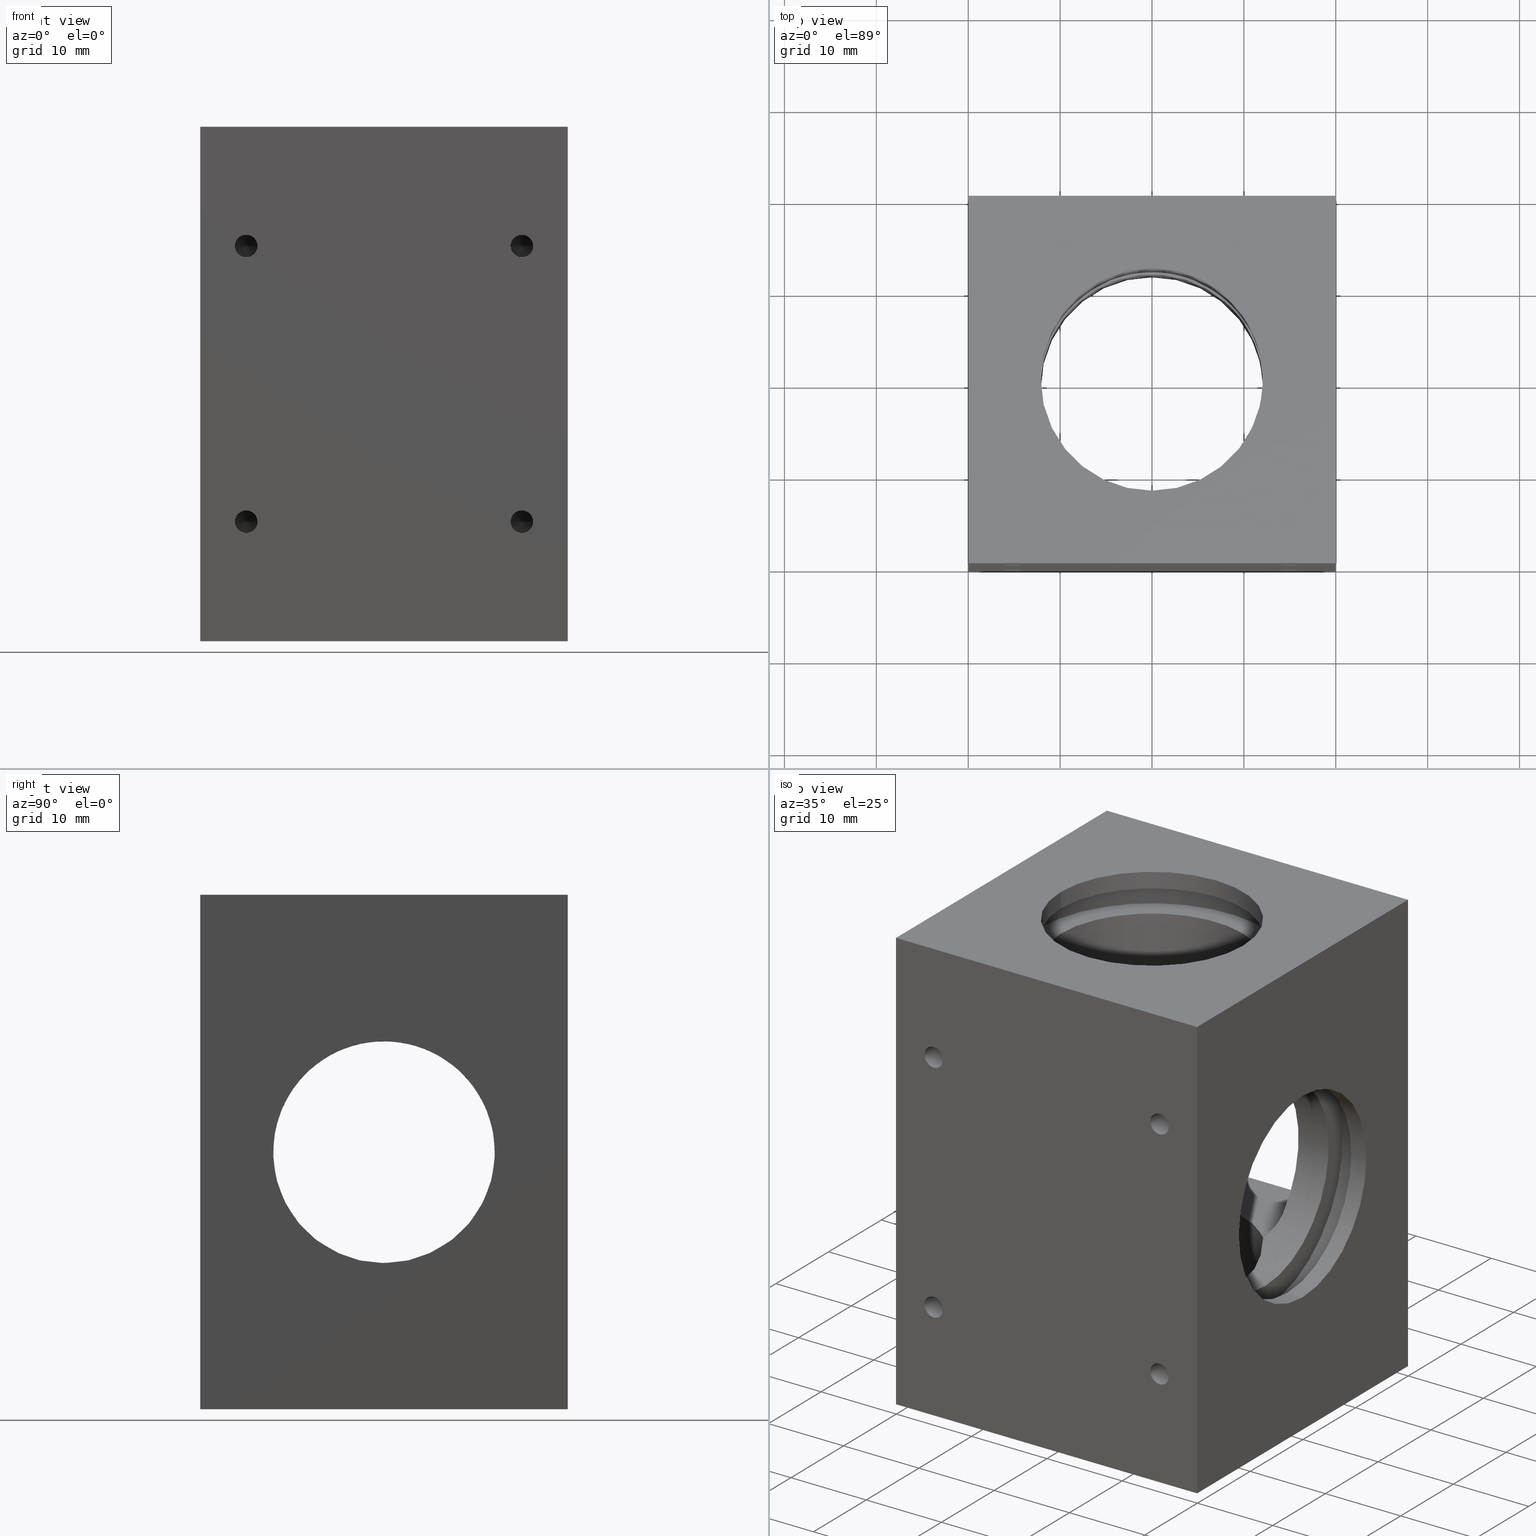
[diagram: canonical four-view strip — front | top / right | iso, engineering-drawing reading convention]
A machine part, canonical four-view strip (front | top / right | iso — engineering-drawing reading convention). The complete STEP part file that produces these views, byte-faithful:
ISO-10303-21;
HEADER;
/* Generated by software containing ST-Developer
 * from STEP Tools, Inc. (www.steptools.com) 
 */

FILE_DESCRIPTION(
/* description */ (''),
/* implementation_level */ '2;1');

FILE_NAME(
/* name */ 
'C:\\Users\\Charl\X\E8ne Brillard\\Desktop\\GHOSTINTHESHELL\\LM\\OpenS
PIM\\CAD\\Website\\X-OpenSPIM40xNikonSampleChamber_v2.stp',
/* time_stamp */ '2021-08-30T17:54:37+02:00',
/* author */ ('Charlene Brillard'),
/* organization */ (''),
/* preprocessor_version */ 'ST-DEVELOPER v16.5',
/* originating_system */ 'Autodesk Inventor 2017',
/* authorisation */ '');

FILE_SCHEMA (('AUTOMOTIVE_DESIGN { 1 0 10303 214 3 1 1 }'));
ENDSEC;

DATA;
#10=MECHANICAL_DESIGN_GEOMETRIC_PRESENTATION_REPRESENTATION('',(#47,#53,
#45,#49,#43,#50,#48,#46,#44,#51,#54,#52,#34,#35,#37,#36,#40,#41,#38,#42,
#39),#1471);
#11=SHAPE_REPRESENTATION_RELATIONSHIP('SRR','None',#1480,#12);
#12=ADVANCED_BREP_SHAPE_REPRESENTATION('',(#13),#1470);
#13=MANIFOLD_SOLID_BREP('Solid1',#817);
#14=ELLIPSE('',#896,17.1119841047144,12.1);
#15=ELLIPSE('',#897,17.1119841047144,12.1);
#16=ELLIPSE('',#899,17.1119841047144,12.1);
#17=ELLIPSE('',#901,17.1119841047144,12.1);
#18=B_SPLINE_CURVE_WITH_KNOTS('',3,(#1231,#1232,#1233,#1234,#1235,#1236),
 .UNSPECIFIED.,.F.,.F.,(4,2,4),(-0.611864740856436,-0.430574594448887,-0.289504826090937),
 .UNSPECIFIED.);
#19=B_SPLINE_CURVE_WITH_KNOTS('',3,(#1238,#1239,#1240,#1241,#1242,#1243),
 .UNSPECIFIED.,.F.,.F.,(4,2,4),(1.38966952352629,1.55096389281161,1.71225826209692),
 .UNSPECIFIED.);
#20=B_SPLINE_CURVE_WITH_KNOTS('',3,(#1253,#1254,#1255,#1256,#1257,#1258),
 .UNSPECIFIED.,.F.,.F.,(4,2,4),(0.501109366172013,0.682399512579561,0.823469280929553),
 .UNSPECIFIED.);
#21=B_SPLINE_CURVE_WITH_KNOTS('',3,(#1259,#1260,#1261,#1262,#1263,#1264),
 .UNSPECIFIED.,.F.,.F.,(4,2,4),(1.40247893311939,1.54354870147734,1.72483884788488),
 .UNSPECIFIED.);
#22=B_SPLINE_CURVE_WITH_KNOTS('',3,(#1339,#1340,#1341,#1342,#1343,#1344),
 .UNSPECIFIED.,.F.,.F.,(4,2,4),(1.40247893312734,1.54354870147733,1.72483884788488),
 .UNSPECIFIED.);
#23=B_SPLINE_CURVE_WITH_KNOTS('',3,(#1347,#1348,#1349,#1350,#1351,#1352),
 .UNSPECIFIED.,.F.,.F.,(4,2,4),(0.289504826099553,0.430574594448888,0.611864740856436),
 .UNSPECIFIED.);
#24=B_SPLINE_CURVE_WITH_KNOTS('',3,(#1355,#1356,#1357,#1358,#1359,#1360),
 .UNSPECIFIED.,.F.,.F.,(4,2,4),(-0.611864740856436,-0.430574594448888,-0.289504826099554),
 .UNSPECIFIED.);
#25=B_SPLINE_CURVE_WITH_KNOTS('',3,(#1366,#1367,#1368,#1369,#1370,#1371),
 .UNSPECIFIED.,.F.,.F.,(4,2,4),(-0.611864740856436,-0.430574594448887,-0.289504826098897),
 .UNSPECIFIED.);
#26=B_SPLINE_CURVE_WITH_KNOTS('',3,(#1376,#1377,#1378,#1379,#1380,#1381),
 .UNSPECIFIED.,.F.,.F.,(4,2,4),(0.501070849621569,0.662365218906885,0.823659588192201),
 .UNSPECIFIED.);
#27=B_SPLINE_CURVE_WITH_KNOTS('',3,(#1384,#1385,#1386,#1387,#1388,#1389),
 .UNSPECIFIED.,.F.,.F.,(4,2,4),(0.276695416497843,0.437989785783159,0.599284155068476),
 .UNSPECIFIED.);
#28=B_SPLINE_CURVE_WITH_KNOTS('',3,(#1394,#1395,#1396,#1397,#1398,#1399),
 .UNSPECIFIED.,.F.,.F.,(4,2,4),(0.289504826090937,0.430574594448887,0.611864740856436),
 .UNSPECIFIED.);
#29=B_SPLINE_CURVE_WITH_KNOTS('',3,(#1403,#1404,#1405,#1406,#1407,#1408),
 .UNSPECIFIED.,.F.,.F.,(4,2,4),(-0.611864740856436,-0.430574594448887,-0.289504826090936),
 .UNSPECIFIED.);
#30=B_SPLINE_CURVE_WITH_KNOTS('',3,(#1411,#1412,#1413,#1414,#1415,#1416),
 .UNSPECIFIED.,.F.,.F.,(4,2,4),(1.38966952352629,1.55096389281161,1.71225826209692),
 .UNSPECIFIED.);
#31=B_SPLINE_CURVE_WITH_KNOTS('',3,(#1418,#1419,#1420,#1421,#1422,#1423),
 .UNSPECIFIED.,.F.,.F.,(4,2,4),(0.501070849621569,0.662365218906885,0.823659588192201),
 .UNSPECIFIED.);
#32=B_SPLINE_CURVE_WITH_KNOTS('',3,(#1427,#1428,#1429,#1430,#1431,#1432),
 .UNSPECIFIED.,.F.,.F.,(4,2,4),(0.501109366172013,0.682399512579562,0.823469280937512),
 .UNSPECIFIED.);
#33=B_SPLINE_CURVE_WITH_KNOTS('',3,(#1435,#1436,#1437,#1438,#1439,#1440),
 .UNSPECIFIED.,.F.,.F.,(4,2,4),(0.289504826090937,0.430574594448887,0.611864740856436),
 .UNSPECIFIED.);
#34=STYLED_ITEM('',(#1490),#776);
#35=STYLED_ITEM('',(#1490),#777);
#36=STYLED_ITEM('',(#1490),#778);
#37=STYLED_ITEM('',(#1490),#779);
#38=STYLED_ITEM('',(#1490),#799);
#39=STYLED_ITEM('',(#1490),#800);
#40=STYLED_ITEM('',(#1490),#803);
#41=STYLED_ITEM('',(#1490),#804);
#42=STYLED_ITEM('',(#1490),#805);
#43=STYLED_ITEM('',(#1490),#806);
#44=STYLED_ITEM('',(#1490),#807);
#45=STYLED_ITEM('',(#1490),#808);
#46=STYLED_ITEM('',(#1490),#809);
#47=STYLED_ITEM('',(#1490),#810);
#48=STYLED_ITEM('',(#1490),#811);
#49=STYLED_ITEM('',(#1490),#812);
#50=STYLED_ITEM('',(#1490),#813);
#51=STYLED_ITEM('',(#1490),#814);
#52=STYLED_ITEM('',(#1490),#815);
#53=STYLED_ITEM('',(#1490),#816);
#54=STYLED_ITEM('',(#1489),#13);
#55=CYLINDRICAL_SURFACE('',#837,1.2295);
#56=CYLINDRICAL_SURFACE('',#841,1.2295);
#57=CYLINDRICAL_SURFACE('',#845,1.2295);
#58=CYLINDRICAL_SURFACE('',#849,1.2295);
#59=CYLINDRICAL_SURFACE('',#851,3.);
#60=CYLINDRICAL_SURFACE('',#854,3.);
#61=CYLINDRICAL_SURFACE('',#858,14.75);
#62=CYLINDRICAL_SURFACE('',#865,12.1);
#63=CYLINDRICAL_SURFACE('',#867,14.75);
#64=CYLINDRICAL_SURFACE('',#874,12.1);
#65=CYLINDRICAL_SURFACE('',#876,14.75);
#66=CYLINDRICAL_SURFACE('',#883,12.1);
#67=CYLINDRICAL_SURFACE('',#885,14.75);
#68=CYLINDRICAL_SURFACE('',#892,12.1);
#69=CYLINDRICAL_SURFACE('',#894,12.1);
#70=CYLINDRICAL_SURFACE('',#898,12.1);
#71=CYLINDRICAL_SURFACE('',#904,3.);
#72=CYLINDRICAL_SURFACE('',#905,12.1);
#73=CYLINDRICAL_SURFACE('',#908,12.1);
#74=CYLINDRICAL_SURFACE('',#910,3.);
#75=CYLINDRICAL_SURFACE('',#912,3.);
#76=CYLINDRICAL_SURFACE('',#913,3.);
#77=CYLINDRICAL_SURFACE('',#916,3.);
#78=CYLINDRICAL_SURFACE('',#918,3.);
#79=CONICAL_SURFACE('',#835,0.61475,59.);
#80=CONICAL_SURFACE('',#839,0.61475,59.);
#81=CONICAL_SURFACE('',#843,0.61475,59.);
#82=CONICAL_SURFACE('',#847,0.61475,59.);
#83=FACE_BOUND('',#212,.T.);
#84=FACE_BOUND('',#216,.T.);
#85=FACE_BOUND('',#219,.T.);
#86=FACE_BOUND('',#222,.T.);
#87=FACE_BOUND('',#225,.T.);
#88=FACE_BOUND('',#231,.T.);
#89=FACE_BOUND('',#232,.T.);
#90=FACE_BOUND('',#233,.T.);
#91=FACE_BOUND('',#234,.T.);
#92=FACE_BOUND('',#236,.T.);
#93=FACE_BOUND('',#238,.T.);
#94=FACE_BOUND('',#240,.T.);
#95=FACE_BOUND('',#242,.T.);
#96=FACE_BOUND('',#244,.T.);
#97=FACE_BOUND('',#246,.T.);
#98=FACE_BOUND('',#248,.T.);
#99=FACE_BOUND('',#250,.T.);
#100=FACE_BOUND('',#252,.T.);
#101=FACE_BOUND('',#254,.T.);
#102=FACE_BOUND('',#256,.T.);
#103=FACE_BOUND('',#258,.T.);
#104=FACE_BOUND('',#260,.T.);
#105=FACE_BOUND('',#262,.T.);
#106=FACE_BOUND('',#264,.T.);
#107=FACE_BOUND('',#266,.T.);
#108=FACE_BOUND('',#268,.T.);
#109=FACE_BOUND('',#270,.T.);
#110=FACE_BOUND('',#274,.T.);
#111=FACE_BOUND('',#276,.T.);
#112=FACE_BOUND('',#288,.T.);
#113=FACE_BOUND('',#290,.T.);
#114=FACE_BOUND('',#292,.T.);
#115=FACE_BOUND('',#294,.T.);
#116=CIRCLE('',#826,3.);
#117=CIRCLE('',#827,3.);
#118=CIRCLE('',#828,3.);
#119=CIRCLE('',#829,3.);
#120=CIRCLE('',#831,3.);
#121=CIRCLE('',#832,3.);
#122=CIRCLE('',#833,3.);
#123=CIRCLE('',#834,3.);
#124=CIRCLE('',#836,1.2295);
#125=CIRCLE('',#838,1.2295);
#126=CIRCLE('',#840,1.2295);
#127=CIRCLE('',#842,1.2295);
#128=CIRCLE('',#844,1.2295);
#129=CIRCLE('',#846,1.2295);
#130=CIRCLE('',#848,1.2295);
#131=CIRCLE('',#850,1.2295);
#132=CIRCLE('',#853,12.1);
#133=CIRCLE('',#856,12.1);
#134=CIRCLE('',#859,14.75);
#135=CIRCLE('',#860,14.75);
#136=CIRCLE('',#862,12.1);
#137=CIRCLE('',#864,12.1);
#138=CIRCLE('',#866,12.1);
#139=CIRCLE('',#868,14.75);
#140=CIRCLE('',#869,14.75);
#141=CIRCLE('',#871,12.1);
#142=CIRCLE('',#873,12.1);
#143=CIRCLE('',#875,12.1);
#144=CIRCLE('',#877,14.75);
#145=CIRCLE('',#878,14.75);
#146=CIRCLE('',#880,12.1);
#147=CIRCLE('',#882,12.1);
#148=CIRCLE('',#884,12.1);
#149=CIRCLE('',#886,14.75);
#150=CIRCLE('',#887,14.75);
#151=CIRCLE('',#889,12.1);
#152=CIRCLE('',#891,12.1);
#153=CIRCLE('',#893,12.1);
#154=CIRCLE('',#895,12.1);
#155=CIRCLE('',#900,12.1);
#156=CIRCLE('',#902,12.1);
#157=CIRCLE('',#906,12.1);
#158=CIRCLE('',#907,12.1);
#159=CIRCLE('',#909,12.1);
#160=FACE_OUTER_BOUND('',#211,.T.);
#161=FACE_OUTER_BOUND('',#213,.T.);
#162=FACE_OUTER_BOUND('',#214,.T.);
#163=FACE_OUTER_BOUND('',#215,.T.);
#164=FACE_OUTER_BOUND('',#217,.T.);
#165=FACE_OUTER_BOUND('',#218,.T.);
#166=FACE_OUTER_BOUND('',#220,.T.);
#167=FACE_OUTER_BOUND('',#221,.T.);
#168=FACE_OUTER_BOUND('',#223,.T.);
#169=FACE_OUTER_BOUND('',#224,.T.);
#170=FACE_OUTER_BOUND('',#226,.T.);
#171=FACE_OUTER_BOUND('',#227,.T.);
#172=FACE_OUTER_BOUND('',#228,.T.);
#173=FACE_OUTER_BOUND('',#229,.T.);
#174=FACE_OUTER_BOUND('',#230,.T.);
#175=FACE_OUTER_BOUND('',#235,.T.);
#176=FACE_OUTER_BOUND('',#237,.T.);
#177=FACE_OUTER_BOUND('',#239,.T.);
#178=FACE_OUTER_BOUND('',#241,.T.);
#179=FACE_OUTER_BOUND('',#243,.T.);
#180=FACE_OUTER_BOUND('',#245,.T.);
#181=FACE_OUTER_BOUND('',#247,.T.);
#182=FACE_OUTER_BOUND('',#249,.T.);
#183=FACE_OUTER_BOUND('',#251,.T.);
#184=FACE_OUTER_BOUND('',#253,.T.);
#185=FACE_OUTER_BOUND('',#255,.T.);
#186=FACE_OUTER_BOUND('',#257,.T.);
#187=FACE_OUTER_BOUND('',#259,.T.);
#188=FACE_OUTER_BOUND('',#261,.T.);
#189=FACE_OUTER_BOUND('',#263,.T.);
#190=FACE_OUTER_BOUND('',#265,.T.);
#191=FACE_OUTER_BOUND('',#267,.T.);
#192=FACE_OUTER_BOUND('',#269,.T.);
#193=FACE_OUTER_BOUND('',#271,.T.);
#194=FACE_OUTER_BOUND('',#272,.T.);
#195=FACE_OUTER_BOUND('',#273,.T.);
#196=FACE_OUTER_BOUND('',#275,.T.);
#197=FACE_OUTER_BOUND('',#277,.T.);
#198=FACE_OUTER_BOUND('',#278,.T.);
#199=FACE_OUTER_BOUND('',#279,.T.);
#200=FACE_OUTER_BOUND('',#280,.T.);
#201=FACE_OUTER_BOUND('',#281,.T.);
#202=FACE_OUTER_BOUND('',#282,.T.);
#203=FACE_OUTER_BOUND('',#283,.T.);
#204=FACE_OUTER_BOUND('',#284,.T.);
#205=FACE_OUTER_BOUND('',#285,.T.);
#206=FACE_OUTER_BOUND('',#286,.T.);
#207=FACE_OUTER_BOUND('',#287,.T.);
#208=FACE_OUTER_BOUND('',#289,.T.);
#209=FACE_OUTER_BOUND('',#291,.T.);
#210=FACE_OUTER_BOUND('',#293,.T.);
#211=EDGE_LOOP('',(#543,#544,#545,#546));
#212=EDGE_LOOP('',(#547,#548,#549,#550,#551,#552,#553,#554));
#213=EDGE_LOOP('',(#555,#556,#557,#558,#559,#560,#561,#562));
#214=EDGE_LOOP('',(#563));
#215=EDGE_LOOP('',(#564));
#216=EDGE_LOOP('',(#565));
#217=EDGE_LOOP('',(#566));
#218=EDGE_LOOP('',(#567));
#219=EDGE_LOOP('',(#568));
#220=EDGE_LOOP('',(#569));
#221=EDGE_LOOP('',(#570));
#222=EDGE_LOOP('',(#571));
#223=EDGE_LOOP('',(#572));
#224=EDGE_LOOP('',(#573));
#225=EDGE_LOOP('',(#574));
#226=EDGE_LOOP('',(#575,#576,#577,#578,#579));
#227=EDGE_LOOP('',(#580,#581,#582,#583));
#228=EDGE_LOOP('',(#584,#585,#586,#587,#588));
#229=EDGE_LOOP('',(#589,#590,#591,#592));
#230=EDGE_LOOP('',(#593,#594,#595,#596));
#231=EDGE_LOOP('',(#597));
#232=EDGE_LOOP('',(#598));
#233=EDGE_LOOP('',(#599));
#234=EDGE_LOOP('',(#600));
#235=EDGE_LOOP('',(#601));
#236=EDGE_LOOP('',(#602));
#237=EDGE_LOOP('',(#603));
#238=EDGE_LOOP('',(#604));
#239=EDGE_LOOP('',(#605));
#240=EDGE_LOOP('',(#606));
#241=EDGE_LOOP('',(#607));
#242=EDGE_LOOP('',(#608));
#243=EDGE_LOOP('',(#609));
#244=EDGE_LOOP('',(#610));
#245=EDGE_LOOP('',(#611));
#246=EDGE_LOOP('',(#612));
#247=EDGE_LOOP('',(#613));
#248=EDGE_LOOP('',(#614));
#249=EDGE_LOOP('',(#615));
#250=EDGE_LOOP('',(#616));
#251=EDGE_LOOP('',(#617));
#252=EDGE_LOOP('',(#618));
#253=EDGE_LOOP('',(#619));
#254=EDGE_LOOP('',(#620));
#255=EDGE_LOOP('',(#621));
#256=EDGE_LOOP('',(#622));
#257=EDGE_LOOP('',(#623));
#258=EDGE_LOOP('',(#624));
#259=EDGE_LOOP('',(#625));
#260=EDGE_LOOP('',(#626));
#261=EDGE_LOOP('',(#627));
#262=EDGE_LOOP('',(#628));
#263=EDGE_LOOP('',(#629));
#264=EDGE_LOOP('',(#630));
#265=EDGE_LOOP('',(#631));
#266=EDGE_LOOP('',(#632));
#267=EDGE_LOOP('',(#633));
#268=EDGE_LOOP('',(#634,#635,#636,#637,#638,#639,#640,#641));
#269=EDGE_LOOP('',(#642));
#270=EDGE_LOOP('',(#643,#644,#645,#646,#647,#648,#649,#650));
#271=EDGE_LOOP('',(#651,#652,#653,#654));
#272=EDGE_LOOP('',(#655,#656,#657,#658,#659));
#273=EDGE_LOOP('',(#660));
#274=EDGE_LOOP('',(#661,#662,#663,#664,#665,#666,#667,#668));
#275=EDGE_LOOP('',(#669));
#276=EDGE_LOOP('',(#670,#671,#672,#673,#674,#675,#676,#677));
#277=EDGE_LOOP('',(#678,#679,#680,#681,#682));
#278=EDGE_LOOP('',(#683,#684,#685,#686));
#279=EDGE_LOOP('',(#687,#688,#689,#690,#691));
#280=EDGE_LOOP('',(#692,#693,#694,#695,#696));
#281=EDGE_LOOP('',(#697,#698,#699,#700));
#282=EDGE_LOOP('',(#701,#702,#703,#704));
#283=EDGE_LOOP('',(#705,#706,#707,#708,#709));
#284=EDGE_LOOP('',(#710,#711,#712,#713));
#285=EDGE_LOOP('',(#714,#715,#716,#717,#718));
#286=EDGE_LOOP('',(#719,#720,#721,#722));
#287=EDGE_LOOP('',(#723,#724,#725,#726));
#288=EDGE_LOOP('',(#727));
#289=EDGE_LOOP('',(#728,#729,#730,#731));
#290=EDGE_LOOP('',(#732));
#291=EDGE_LOOP('',(#733,#734,#735,#736));
#292=EDGE_LOOP('',(#737));
#293=EDGE_LOOP('',(#738,#739,#740,#741));
#294=EDGE_LOOP('',(#742));
#295=LINE('',#1164,#331);
#296=LINE('',#1166,#332);
#297=LINE('',#1168,#333);
#298=LINE('',#1169,#334);
#299=LINE('',#1172,#335);
#300=LINE('',#1176,#336);
#301=LINE('',#1180,#337);
#302=LINE('',#1184,#338);
#303=LINE('',#1189,#339);
#304=LINE('',#1193,#340);
#305=LINE('',#1197,#341);
#306=LINE('',#1201,#342);
#307=LINE('',#1229,#343);
#308=LINE('',#1244,#344);
#309=LINE('',#1247,#345);
#310=LINE('',#1251,#346);
#311=LINE('',#1267,#347);
#312=LINE('',#1272,#348);
#313=LINE('',#1274,#349);
#314=LINE('',#1276,#350);
#315=LINE('',#1277,#351);
#316=LINE('',#1391,#352);
#317=LINE('',#1400,#353);
#318=LINE('',#1442,#354);
#319=LINE('',#1443,#355);
#320=LINE('',#1445,#356);
#321=LINE('',#1447,#357);
#322=LINE('',#1449,#358);
#323=LINE('',#1452,#359);
#324=LINE('',#1454,#360);
#325=LINE('',#1456,#361);
#326=LINE('',#1458,#362);
#327=LINE('',#1461,#363);
#328=LINE('',#1462,#364);
#329=LINE('',#1464,#365);
#330=LINE('',#1466,#366);
#331=VECTOR('',#928,10.);
#332=VECTOR('',#929,10.);
#333=VECTOR('',#930,10.);
#334=VECTOR('',#931,10.);
#335=VECTOR('',#932,10.);
#336=VECTOR('',#935,10.);
#337=VECTOR('',#938,10.);
#338=VECTOR('',#941,10.);
#339=VECTOR('',#946,10.);
#340=VECTOR('',#949,10.);
#341=VECTOR('',#952,10.);
#342=VECTOR('',#955,10.);
#343=VECTOR('',#992,10.);
#344=VECTOR('',#993,10.);
#345=VECTOR('',#996,10.);
#346=VECTOR('',#1001,10.);
#347=VECTOR('',#1004,10.);
#348=VECTOR('',#1009,10.);
#349=VECTOR('',#1010,10.);
#350=VECTOR('',#1011,10.);
#351=VECTOR('',#1012,10.);
#352=VECTOR('',#1105,10.);
#353=VECTOR('',#1108,10.);
#354=VECTOR('',#1121,10.);
#355=VECTOR('',#1122,10.);
#356=VECTOR('',#1125,10.);
#357=VECTOR('',#1128,10.);
#358=VECTOR('',#1131,10.);
#359=VECTOR('',#1136,10.);
#360=VECTOR('',#1139,10.);
#361=VECTOR('',#1142,10.);
#362=VECTOR('',#1145,10.);
#363=VECTOR('',#1150,10.);
#364=VECTOR('',#1151,10.);
#365=VECTOR('',#1154,10.);
#366=VECTOR('',#1157,10.);
#367=VERTEX_POINT('',#1162);
#368=VERTEX_POINT('',#1163);
#369=VERTEX_POINT('',#1165);
#370=VERTEX_POINT('',#1167);
#371=VERTEX_POINT('',#1170);
#372=VERTEX_POINT('',#1171);
#373=VERTEX_POINT('',#1173);
#374=VERTEX_POINT('',#1175);
#375=VERTEX_POINT('',#1177);
#376=VERTEX_POINT('',#1179);
#377=VERTEX_POINT('',#1181);
#378=VERTEX_POINT('',#1183);
#379=VERTEX_POINT('',#1187);
#380=VERTEX_POINT('',#1188);
#381=VERTEX_POINT('',#1190);
#382=VERTEX_POINT('',#1192);
#383=VERTEX_POINT('',#1194);
#384=VERTEX_POINT('',#1196);
#385=VERTEX_POINT('',#1198);
#386=VERTEX_POINT('',#1200);
#387=VERTEX_POINT('',#1204);
#388=VERTEX_POINT('',#1207);
#389=VERTEX_POINT('',#1210);
#390=VERTEX_POINT('',#1213);
#391=VERTEX_POINT('',#1216);
#392=VERTEX_POINT('',#1219);
#393=VERTEX_POINT('',#1222);
#394=VERTEX_POINT('',#1225);
#395=VERTEX_POINT('',#1228);
#396=VERTEX_POINT('',#1230);
#397=VERTEX_POINT('',#1237);
#398=VERTEX_POINT('',#1246);
#399=VERTEX_POINT('',#1250);
#400=VERTEX_POINT('',#1252);
#401=VERTEX_POINT('',#1266);
#402=VERTEX_POINT('',#1270);
#403=VERTEX_POINT('',#1271);
#404=VERTEX_POINT('',#1273);
#405=VERTEX_POINT('',#1275);
#406=VERTEX_POINT('',#1279);
#407=VERTEX_POINT('',#1281);
#408=VERTEX_POINT('',#1284);
#409=VERTEX_POINT('',#1287);
#410=VERTEX_POINT('',#1290);
#411=VERTEX_POINT('',#1293);
#412=VERTEX_POINT('',#1295);
#413=VERTEX_POINT('',#1298);
#414=VERTEX_POINT('',#1301);
#415=VERTEX_POINT('',#1304);
#416=VERTEX_POINT('',#1307);
#417=VERTEX_POINT('',#1309);
#418=VERTEX_POINT('',#1312);
#419=VERTEX_POINT('',#1315);
#420=VERTEX_POINT('',#1318);
#421=VERTEX_POINT('',#1321);
#422=VERTEX_POINT('',#1323);
#423=VERTEX_POINT('',#1326);
#424=VERTEX_POINT('',#1329);
#425=VERTEX_POINT('',#1332);
#426=VERTEX_POINT('',#1335);
#427=VERTEX_POINT('',#1336);
#428=VERTEX_POINT('',#1338);
#429=VERTEX_POINT('',#1346);
#430=VERTEX_POINT('',#1353);
#431=VERTEX_POINT('',#1362);
#432=VERTEX_POINT('',#1363);
#433=VERTEX_POINT('',#1365);
#434=VERTEX_POINT('',#1373);
#435=VERTEX_POINT('',#1375);
#436=VERTEX_POINT('',#1382);
#437=VERTEX_POINT('',#1393);
#438=VERTEX_POINT('',#1402);
#439=VERTEX_POINT('',#1409);
#440=VERTEX_POINT('',#1417);
#441=VERTEX_POINT('',#1426);
#442=VERTEX_POINT('',#1433);
#443=EDGE_CURVE('',#367,#368,#295,.T.);
#444=EDGE_CURVE('',#368,#369,#296,.T.);
#445=EDGE_CURVE('',#369,#370,#297,.T.);
#446=EDGE_CURVE('',#370,#367,#298,.T.);
#447=EDGE_CURVE('',#371,#372,#299,.T.);
#448=EDGE_CURVE('',#372,#373,#116,.T.);
#449=EDGE_CURVE('',#373,#374,#300,.T.);
#450=EDGE_CURVE('',#374,#375,#117,.T.);
#451=EDGE_CURVE('',#375,#376,#301,.T.);
#452=EDGE_CURVE('',#376,#377,#118,.T.);
#453=EDGE_CURVE('',#377,#378,#302,.T.);
#454=EDGE_CURVE('',#378,#371,#119,.T.);
#455=EDGE_CURVE('',#379,#380,#303,.T.);
#456=EDGE_CURVE('',#381,#379,#120,.T.);
#457=EDGE_CURVE('',#382,#381,#304,.T.);
#458=EDGE_CURVE('',#383,#382,#121,.T.);
#459=EDGE_CURVE('',#384,#383,#305,.T.);
#460=EDGE_CURVE('',#385,#384,#122,.T.);
#461=EDGE_CURVE('',#386,#385,#306,.T.);
#462=EDGE_CURVE('',#380,#386,#123,.T.);
#463=EDGE_CURVE('',#387,#387,#124,.T.);
#464=EDGE_CURVE('',#388,#388,#125,.T.);
#465=EDGE_CURVE('',#389,#389,#126,.T.);
#466=EDGE_CURVE('',#390,#390,#127,.T.);
#467=EDGE_CURVE('',#391,#391,#128,.T.);
#468=EDGE_CURVE('',#392,#392,#129,.T.);
#469=EDGE_CURVE('',#393,#393,#130,.T.);
#470=EDGE_CURVE('',#394,#394,#131,.T.);
#471=EDGE_CURVE('',#382,#395,#307,.T.);
#472=EDGE_CURVE('',#395,#396,#18,.T.);
#473=EDGE_CURVE('',#396,#397,#19,.T.);
#474=EDGE_CURVE('',#383,#397,#308,.T.);
#475=EDGE_CURVE('',#381,#398,#309,.T.);
#476=EDGE_CURVE('',#398,#395,#132,.T.);
#477=EDGE_CURVE('',#379,#399,#310,.T.);
#478=EDGE_CURVE('',#399,#400,#20,.T.);
#479=EDGE_CURVE('',#400,#398,#21,.T.);
#480=EDGE_CURVE('',#380,#401,#311,.T.);
#481=EDGE_CURVE('',#401,#399,#133,.T.);
#482=EDGE_CURVE('',#402,#403,#312,.T.);
#483=EDGE_CURVE('',#403,#404,#313,.T.);
#484=EDGE_CURVE('',#404,#405,#314,.T.);
#485=EDGE_CURVE('',#405,#402,#315,.T.);
#486=EDGE_CURVE('',#406,#406,#134,.T.);
#487=EDGE_CURVE('',#407,#407,#135,.T.);
#488=EDGE_CURVE('',#408,#408,#136,.T.);
#489=EDGE_CURVE('',#409,#409,#137,.T.);
#490=EDGE_CURVE('',#410,#410,#138,.T.);
#491=EDGE_CURVE('',#411,#411,#139,.T.);
#492=EDGE_CURVE('',#412,#412,#140,.T.);
#493=EDGE_CURVE('',#413,#413,#141,.T.);
#494=EDGE_CURVE('',#414,#414,#142,.T.);
#495=EDGE_CURVE('',#415,#415,#143,.T.);
#496=EDGE_CURVE('',#416,#416,#144,.T.);
#497=EDGE_CURVE('',#417,#417,#145,.T.);
#498=EDGE_CURVE('',#418,#418,#146,.T.);
#499=EDGE_CURVE('',#419,#419,#147,.T.);
#500=EDGE_CURVE('',#420,#420,#148,.T.);
#501=EDGE_CURVE('',#421,#421,#149,.T.);
#502=EDGE_CURVE('',#422,#422,#150,.T.);
#503=EDGE_CURVE('',#423,#423,#151,.T.);
#504=EDGE_CURVE('',#424,#424,#152,.T.);
#505=EDGE_CURVE('',#425,#425,#153,.T.);
#506=EDGE_CURVE('',#426,#427,#154,.T.);
#507=EDGE_CURVE('',#428,#426,#22,.T.);
#508=EDGE_CURVE('',#400,#428,#14,.T.);
#509=EDGE_CURVE('',#429,#401,#23,.T.);
#510=EDGE_CURVE('',#430,#429,#15,.T.);
#511=EDGE_CURVE('',#427,#430,#24,.T.);
#512=EDGE_CURVE('',#431,#432,#16,.T.);
#513=EDGE_CURVE('',#433,#431,#25,.T.);
#514=EDGE_CURVE('',#397,#433,#155,.T.);
#515=EDGE_CURVE('',#434,#396,#17,.T.);
#516=EDGE_CURVE('',#435,#434,#26,.T.);
#517=EDGE_CURVE('',#436,#435,#156,.T.);
#518=EDGE_CURVE('',#432,#436,#27,.T.);
#519=EDGE_CURVE('',#384,#433,#316,.T.);
#520=EDGE_CURVE('',#431,#437,#28,.T.);
#521=EDGE_CURVE('',#385,#437,#317,.T.);
#522=EDGE_CURVE('',#438,#432,#29,.T.);
#523=EDGE_CURVE('',#439,#438,#157,.T.);
#524=EDGE_CURVE('',#430,#439,#30,.T.);
#525=EDGE_CURVE('',#440,#429,#31,.T.);
#526=EDGE_CURVE('',#437,#440,#158,.T.);
#527=EDGE_CURVE('',#441,#428,#32,.T.);
#528=EDGE_CURVE('',#442,#441,#159,.T.);
#529=EDGE_CURVE('',#434,#442,#33,.T.);
#530=EDGE_CURVE('',#426,#375,#318,.T.);
#531=EDGE_CURVE('',#441,#374,#319,.T.);
#532=EDGE_CURVE('',#427,#376,#320,.T.);
#533=EDGE_CURVE('',#386,#440,#321,.T.);
#534=EDGE_CURVE('',#439,#377,#322,.T.);
#535=EDGE_CURVE('',#438,#378,#323,.T.);
#536=EDGE_CURVE('',#436,#371,#324,.T.);
#537=EDGE_CURVE('',#435,#372,#325,.T.);
#538=EDGE_CURVE('',#442,#373,#326,.T.);
#539=EDGE_CURVE('',#402,#367,#327,.T.);
#540=EDGE_CURVE('',#403,#370,#328,.T.);
#541=EDGE_CURVE('',#404,#369,#329,.T.);
#542=EDGE_CURVE('',#405,#368,#330,.T.);
#543=ORIENTED_EDGE('',*,*,#443,.T.);
#544=ORIENTED_EDGE('',*,*,#444,.T.);
#545=ORIENTED_EDGE('',*,*,#445,.T.);
#546=ORIENTED_EDGE('',*,*,#446,.T.);
#547=ORIENTED_EDGE('',*,*,#447,.T.);
#548=ORIENTED_EDGE('',*,*,#448,.T.);
#549=ORIENTED_EDGE('',*,*,#449,.T.);
#550=ORIENTED_EDGE('',*,*,#450,.T.);
#551=ORIENTED_EDGE('',*,*,#451,.T.);
#552=ORIENTED_EDGE('',*,*,#452,.T.);
#553=ORIENTED_EDGE('',*,*,#453,.T.);
#554=ORIENTED_EDGE('',*,*,#454,.T.);
#555=ORIENTED_EDGE('',*,*,#455,.F.);
#556=ORIENTED_EDGE('',*,*,#456,.F.);
#557=ORIENTED_EDGE('',*,*,#457,.F.);
#558=ORIENTED_EDGE('',*,*,#458,.F.);
#559=ORIENTED_EDGE('',*,*,#459,.F.);
#560=ORIENTED_EDGE('',*,*,#460,.F.);
#561=ORIENTED_EDGE('',*,*,#461,.F.);
#562=ORIENTED_EDGE('',*,*,#462,.F.);
#563=ORIENTED_EDGE('',*,*,#463,.T.);
#564=ORIENTED_EDGE('',*,*,#464,.F.);
#565=ORIENTED_EDGE('',*,*,#463,.F.);
#566=ORIENTED_EDGE('',*,*,#465,.T.);
#567=ORIENTED_EDGE('',*,*,#466,.F.);
#568=ORIENTED_EDGE('',*,*,#465,.F.);
#569=ORIENTED_EDGE('',*,*,#467,.T.);
#570=ORIENTED_EDGE('',*,*,#468,.F.);
#571=ORIENTED_EDGE('',*,*,#467,.F.);
#572=ORIENTED_EDGE('',*,*,#469,.T.);
#573=ORIENTED_EDGE('',*,*,#470,.F.);
#574=ORIENTED_EDGE('',*,*,#469,.F.);
#575=ORIENTED_EDGE('',*,*,#471,.T.);
#576=ORIENTED_EDGE('',*,*,#472,.T.);
#577=ORIENTED_EDGE('',*,*,#473,.T.);
#578=ORIENTED_EDGE('',*,*,#474,.F.);
#579=ORIENTED_EDGE('',*,*,#458,.T.);
#580=ORIENTED_EDGE('',*,*,#475,.T.);
#581=ORIENTED_EDGE('',*,*,#476,.T.);
#582=ORIENTED_EDGE('',*,*,#471,.F.);
#583=ORIENTED_EDGE('',*,*,#457,.T.);
#584=ORIENTED_EDGE('',*,*,#477,.T.);
#585=ORIENTED_EDGE('',*,*,#478,.T.);
#586=ORIENTED_EDGE('',*,*,#479,.T.);
#587=ORIENTED_EDGE('',*,*,#475,.F.);
#588=ORIENTED_EDGE('',*,*,#456,.T.);
#589=ORIENTED_EDGE('',*,*,#480,.T.);
#590=ORIENTED_EDGE('',*,*,#481,.T.);
#591=ORIENTED_EDGE('',*,*,#477,.F.);
#592=ORIENTED_EDGE('',*,*,#455,.T.);
#593=ORIENTED_EDGE('',*,*,#482,.T.);
#594=ORIENTED_EDGE('',*,*,#483,.T.);
#595=ORIENTED_EDGE('',*,*,#484,.T.);
#596=ORIENTED_EDGE('',*,*,#485,.T.);
#597=ORIENTED_EDGE('',*,*,#464,.T.);
#598=ORIENTED_EDGE('',*,*,#466,.T.);
#599=ORIENTED_EDGE('',*,*,#468,.T.);
#600=ORIENTED_EDGE('',*,*,#470,.T.);
#601=ORIENTED_EDGE('',*,*,#486,.F.);
#602=ORIENTED_EDGE('',*,*,#487,.T.);
#603=ORIENTED_EDGE('',*,*,#486,.T.);
#604=ORIENTED_EDGE('',*,*,#488,.F.);
#605=ORIENTED_EDGE('',*,*,#487,.F.);
#606=ORIENTED_EDGE('',*,*,#489,.F.);
#607=ORIENTED_EDGE('',*,*,#490,.F.);
#608=ORIENTED_EDGE('',*,*,#489,.T.);
#609=ORIENTED_EDGE('',*,*,#491,.T.);
#610=ORIENTED_EDGE('',*,*,#492,.F.);
#611=ORIENTED_EDGE('',*,*,#491,.F.);
#612=ORIENTED_EDGE('',*,*,#493,.F.);
#613=ORIENTED_EDGE('',*,*,#492,.T.);
#614=ORIENTED_EDGE('',*,*,#494,.F.);
#615=ORIENTED_EDGE('',*,*,#495,.F.);
#616=ORIENTED_EDGE('',*,*,#494,.T.);
#617=ORIENTED_EDGE('',*,*,#496,.F.);
#618=ORIENTED_EDGE('',*,*,#497,.T.);
#619=ORIENTED_EDGE('',*,*,#496,.T.);
#620=ORIENTED_EDGE('',*,*,#498,.F.);
#621=ORIENTED_EDGE('',*,*,#497,.F.);
#622=ORIENTED_EDGE('',*,*,#499,.F.);
#623=ORIENTED_EDGE('',*,*,#500,.F.);
#624=ORIENTED_EDGE('',*,*,#499,.T.);
#625=ORIENTED_EDGE('',*,*,#501,.T.);
#626=ORIENTED_EDGE('',*,*,#502,.F.);
#627=ORIENTED_EDGE('',*,*,#501,.F.);
#628=ORIENTED_EDGE('',*,*,#503,.F.);
#629=ORIENTED_EDGE('',*,*,#502,.T.);
#630=ORIENTED_EDGE('',*,*,#504,.F.);
#631=ORIENTED_EDGE('',*,*,#505,.F.);
#632=ORIENTED_EDGE('',*,*,#504,.T.);
#633=ORIENTED_EDGE('',*,*,#488,.T.);
#634=ORIENTED_EDGE('',*,*,#506,.F.);
#635=ORIENTED_EDGE('',*,*,#507,.F.);
#636=ORIENTED_EDGE('',*,*,#508,.F.);
#637=ORIENTED_EDGE('',*,*,#478,.F.);
#638=ORIENTED_EDGE('',*,*,#481,.F.);
#639=ORIENTED_EDGE('',*,*,#509,.F.);
#640=ORIENTED_EDGE('',*,*,#510,.F.);
#641=ORIENTED_EDGE('',*,*,#511,.F.);
#642=ORIENTED_EDGE('',*,*,#493,.T.);
#643=ORIENTED_EDGE('',*,*,#512,.F.);
#644=ORIENTED_EDGE('',*,*,#513,.F.);
#645=ORIENTED_EDGE('',*,*,#514,.F.);
#646=ORIENTED_EDGE('',*,*,#473,.F.);
#647=ORIENTED_EDGE('',*,*,#515,.F.);
#648=ORIENTED_EDGE('',*,*,#516,.F.);
#649=ORIENTED_EDGE('',*,*,#517,.F.);
#650=ORIENTED_EDGE('',*,*,#518,.F.);
#651=ORIENTED_EDGE('',*,*,#474,.T.);
#652=ORIENTED_EDGE('',*,*,#514,.T.);
#653=ORIENTED_EDGE('',*,*,#519,.F.);
#654=ORIENTED_EDGE('',*,*,#459,.T.);
#655=ORIENTED_EDGE('',*,*,#519,.T.);
#656=ORIENTED_EDGE('',*,*,#513,.T.);
#657=ORIENTED_EDGE('',*,*,#520,.T.);
#658=ORIENTED_EDGE('',*,*,#521,.F.);
#659=ORIENTED_EDGE('',*,*,#460,.T.);
#660=ORIENTED_EDGE('',*,*,#498,.T.);
#661=ORIENTED_EDGE('',*,*,#512,.T.);
#662=ORIENTED_EDGE('',*,*,#522,.F.);
#663=ORIENTED_EDGE('',*,*,#523,.F.);
#664=ORIENTED_EDGE('',*,*,#524,.F.);
#665=ORIENTED_EDGE('',*,*,#510,.T.);
#666=ORIENTED_EDGE('',*,*,#525,.F.);
#667=ORIENTED_EDGE('',*,*,#526,.F.);
#668=ORIENTED_EDGE('',*,*,#520,.F.);
#669=ORIENTED_EDGE('',*,*,#503,.T.);
#670=ORIENTED_EDGE('',*,*,#515,.T.);
#671=ORIENTED_EDGE('',*,*,#472,.F.);
#672=ORIENTED_EDGE('',*,*,#476,.F.);
#673=ORIENTED_EDGE('',*,*,#479,.F.);
#674=ORIENTED_EDGE('',*,*,#508,.T.);
#675=ORIENTED_EDGE('',*,*,#527,.F.);
#676=ORIENTED_EDGE('',*,*,#528,.F.);
#677=ORIENTED_EDGE('',*,*,#529,.F.);
#678=ORIENTED_EDGE('',*,*,#507,.T.);
#679=ORIENTED_EDGE('',*,*,#530,.T.);
#680=ORIENTED_EDGE('',*,*,#450,.F.);
#681=ORIENTED_EDGE('',*,*,#531,.F.);
#682=ORIENTED_EDGE('',*,*,#527,.T.);
#683=ORIENTED_EDGE('',*,*,#506,.T.);
#684=ORIENTED_EDGE('',*,*,#532,.T.);
#685=ORIENTED_EDGE('',*,*,#451,.F.);
#686=ORIENTED_EDGE('',*,*,#530,.F.);
#687=ORIENTED_EDGE('',*,*,#533,.T.);
#688=ORIENTED_EDGE('',*,*,#525,.T.);
#689=ORIENTED_EDGE('',*,*,#509,.T.);
#690=ORIENTED_EDGE('',*,*,#480,.F.);
#691=ORIENTED_EDGE('',*,*,#462,.T.);
#692=ORIENTED_EDGE('',*,*,#511,.T.);
#693=ORIENTED_EDGE('',*,*,#524,.T.);
#694=ORIENTED_EDGE('',*,*,#534,.T.);
#695=ORIENTED_EDGE('',*,*,#452,.F.);
#696=ORIENTED_EDGE('',*,*,#532,.F.);
#697=ORIENTED_EDGE('',*,*,#521,.T.);
#698=ORIENTED_EDGE('',*,*,#526,.T.);
#699=ORIENTED_EDGE('',*,*,#533,.F.);
#700=ORIENTED_EDGE('',*,*,#461,.T.);
#701=ORIENTED_EDGE('',*,*,#523,.T.);
#702=ORIENTED_EDGE('',*,*,#535,.T.);
#703=ORIENTED_EDGE('',*,*,#453,.F.);
#704=ORIENTED_EDGE('',*,*,#534,.F.);
#705=ORIENTED_EDGE('',*,*,#518,.T.);
#706=ORIENTED_EDGE('',*,*,#536,.T.);
#707=ORIENTED_EDGE('',*,*,#454,.F.);
#708=ORIENTED_EDGE('',*,*,#535,.F.);
#709=ORIENTED_EDGE('',*,*,#522,.T.);
#710=ORIENTED_EDGE('',*,*,#517,.T.);
#711=ORIENTED_EDGE('',*,*,#537,.T.);
#712=ORIENTED_EDGE('',*,*,#447,.F.);
#713=ORIENTED_EDGE('',*,*,#536,.F.);
#714=ORIENTED_EDGE('',*,*,#516,.T.);
#715=ORIENTED_EDGE('',*,*,#529,.T.);
#716=ORIENTED_EDGE('',*,*,#538,.T.);
#717=ORIENTED_EDGE('',*,*,#448,.F.);
#718=ORIENTED_EDGE('',*,*,#537,.F.);
#719=ORIENTED_EDGE('',*,*,#528,.T.);
#720=ORIENTED_EDGE('',*,*,#531,.T.);
#721=ORIENTED_EDGE('',*,*,#449,.F.);
#722=ORIENTED_EDGE('',*,*,#538,.F.);
#723=ORIENTED_EDGE('',*,*,#482,.F.);
#724=ORIENTED_EDGE('',*,*,#539,.T.);
#725=ORIENTED_EDGE('',*,*,#446,.F.);
#726=ORIENTED_EDGE('',*,*,#540,.F.);
#727=ORIENTED_EDGE('',*,*,#500,.T.);
#728=ORIENTED_EDGE('',*,*,#483,.F.);
#729=ORIENTED_EDGE('',*,*,#540,.T.);
#730=ORIENTED_EDGE('',*,*,#445,.F.);
#731=ORIENTED_EDGE('',*,*,#541,.F.);
#732=ORIENTED_EDGE('',*,*,#495,.T.);
#733=ORIENTED_EDGE('',*,*,#484,.F.);
#734=ORIENTED_EDGE('',*,*,#541,.T.);
#735=ORIENTED_EDGE('',*,*,#444,.F.);
#736=ORIENTED_EDGE('',*,*,#542,.F.);
#737=ORIENTED_EDGE('',*,*,#505,.T.);
#738=ORIENTED_EDGE('',*,*,#485,.F.);
#739=ORIENTED_EDGE('',*,*,#542,.T.);
#740=ORIENTED_EDGE('',*,*,#443,.F.);
#741=ORIENTED_EDGE('',*,*,#539,.F.);
#742=ORIENTED_EDGE('',*,*,#490,.T.);
#743=PLANE('',#825);
#744=PLANE('',#830);
#745=PLANE('',#852);
#746=PLANE('',#855);
#747=PLANE('',#857);
#748=PLANE('',#861);
#749=PLANE('',#863);
#750=PLANE('',#870);
#751=PLANE('',#872);
#752=PLANE('',#879);
#753=PLANE('',#881);
#754=PLANE('',#888);
#755=PLANE('',#890);
#756=PLANE('',#903);
#757=PLANE('',#911);
#758=PLANE('',#914);
#759=PLANE('',#915);
#760=PLANE('',#917);
#761=PLANE('',#919);
#762=PLANE('',#920);
#763=PLANE('',#921);
#764=PLANE('',#922);
#765=PLANE('',#923);
#766=ADVANCED_FACE('',(#160,#83),#743,.T.);
#767=ADVANCED_FACE('',(#161),#744,.T.);
#768=ADVANCED_FACE('',(#162),#79,.F.);
#769=ADVANCED_FACE('',(#163,#84),#55,.F.);
#770=ADVANCED_FACE('',(#164),#80,.F.);
#771=ADVANCED_FACE('',(#165,#85),#56,.F.);
#772=ADVANCED_FACE('',(#166),#81,.F.);
#773=ADVANCED_FACE('',(#167,#86),#57,.F.);
#774=ADVANCED_FACE('',(#168),#82,.F.);
#775=ADVANCED_FACE('',(#169,#87),#58,.F.);
#776=ADVANCED_FACE('',(#170),#59,.F.);
#777=ADVANCED_FACE('',(#171),#745,.F.);
#778=ADVANCED_FACE('',(#172),#60,.F.);
#779=ADVANCED_FACE('',(#173),#746,.F.);
#780=ADVANCED_FACE('',(#174,#88,#89,#90,#91),#747,.T.);
#781=ADVANCED_FACE('',(#175,#92),#61,.F.);
#782=ADVANCED_FACE('',(#176,#93),#748,.T.);
#783=ADVANCED_FACE('',(#177,#94),#749,.F.);
#784=ADVANCED_FACE('',(#178,#95),#62,.F.);
#785=ADVANCED_FACE('',(#179,#96),#63,.F.);
#786=ADVANCED_FACE('',(#180,#97),#750,.F.);
#787=ADVANCED_FACE('',(#181,#98),#751,.T.);
#788=ADVANCED_FACE('',(#182,#99),#64,.F.);
#789=ADVANCED_FACE('',(#183,#100),#65,.F.);
#790=ADVANCED_FACE('',(#184,#101),#752,.F.);
#791=ADVANCED_FACE('',(#185,#102),#753,.T.);
#792=ADVANCED_FACE('',(#186,#103),#66,.F.);
#793=ADVANCED_FACE('',(#187,#104),#67,.F.);
#794=ADVANCED_FACE('',(#188,#105),#754,.T.);
#795=ADVANCED_FACE('',(#189,#106),#755,.F.);
#796=ADVANCED_FACE('',(#190,#107),#68,.F.);
#797=ADVANCED_FACE('',(#191,#108),#69,.F.);
#798=ADVANCED_FACE('',(#192,#109),#70,.F.);
#799=ADVANCED_FACE('',(#193),#756,.F.);
#800=ADVANCED_FACE('',(#194),#71,.F.);
#801=ADVANCED_FACE('',(#195,#110),#72,.F.);
#802=ADVANCED_FACE('',(#196,#111),#73,.F.);
#803=ADVANCED_FACE('',(#197),#74,.F.);
#804=ADVANCED_FACE('',(#198),#757,.F.);
#805=ADVANCED_FACE('',(#199),#75,.F.);
#806=ADVANCED_FACE('',(#200),#76,.F.);
#807=ADVANCED_FACE('',(#201),#758,.F.);
#808=ADVANCED_FACE('',(#202),#759,.F.);
#809=ADVANCED_FACE('',(#203),#77,.F.);
#810=ADVANCED_FACE('',(#204),#760,.F.);
#811=ADVANCED_FACE('',(#205),#78,.F.);
#812=ADVANCED_FACE('',(#206),#761,.F.);
#813=ADVANCED_FACE('',(#207,#112),#762,.T.);
#814=ADVANCED_FACE('',(#208,#113),#763,.T.);
#815=ADVANCED_FACE('',(#209,#114),#764,.T.);
#816=ADVANCED_FACE('',(#210,#115),#765,.T.);
#817=CLOSED_SHELL('',(#766,#767,#768,#769,#770,#771,#772,#773,#774,#775,
#776,#777,#778,#779,#780,#781,#782,#783,#784,#785,#786,#787,#788,#789,#790,
#791,#792,#793,#794,#795,#796,#797,#798,#799,#800,#801,#802,#803,#804,#805,
#806,#807,#808,#809,#810,#811,#812,#813,#814,#815,#816));
#818=DATE_TIME_ROLE('creation_date');
#819=APPLIED_DATE_AND_TIME_ASSIGNMENT(#820,#818,(#1482));
#820=DATE_AND_TIME(#821,#822);
#821=CALENDAR_DATE(2021,14,4);
#822=LOCAL_TIME(17,20,1.,#823);
#823=COORDINATED_UNIVERSAL_TIME_OFFSET(0,0,.BEHIND.);
#824=AXIS2_PLACEMENT_3D('placement',#1160,#924,#925);
#825=AXIS2_PLACEMENT_3D('',#1161,#926,#927);
#826=AXIS2_PLACEMENT_3D('',#1174,#933,#934);
#827=AXIS2_PLACEMENT_3D('',#1178,#936,#937);
#828=AXIS2_PLACEMENT_3D('',#1182,#939,#940);
#829=AXIS2_PLACEMENT_3D('',#1185,#942,#943);
#830=AXIS2_PLACEMENT_3D('',#1186,#944,#945);
#831=AXIS2_PLACEMENT_3D('',#1191,#947,#948);
#832=AXIS2_PLACEMENT_3D('',#1195,#950,#951);
#833=AXIS2_PLACEMENT_3D('',#1199,#953,#954);
#834=AXIS2_PLACEMENT_3D('',#1202,#956,#957);
#835=AXIS2_PLACEMENT_3D('',#1203,#958,#959);
#836=AXIS2_PLACEMENT_3D('',#1205,#960,#961);
#837=AXIS2_PLACEMENT_3D('',#1206,#962,#963);
#838=AXIS2_PLACEMENT_3D('',#1208,#964,#965);
#839=AXIS2_PLACEMENT_3D('',#1209,#966,#967);
#840=AXIS2_PLACEMENT_3D('',#1211,#968,#969);
#841=AXIS2_PLACEMENT_3D('',#1212,#970,#971);
#842=AXIS2_PLACEMENT_3D('',#1214,#972,#973);
#843=AXIS2_PLACEMENT_3D('',#1215,#974,#975);
#844=AXIS2_PLACEMENT_3D('',#1217,#976,#977);
#845=AXIS2_PLACEMENT_3D('',#1218,#978,#979);
#846=AXIS2_PLACEMENT_3D('',#1220,#980,#981);
#847=AXIS2_PLACEMENT_3D('',#1221,#982,#983);
#848=AXIS2_PLACEMENT_3D('',#1223,#984,#985);
#849=AXIS2_PLACEMENT_3D('',#1224,#986,#987);
#850=AXIS2_PLACEMENT_3D('',#1226,#988,#989);
#851=AXIS2_PLACEMENT_3D('',#1227,#990,#991);
#852=AXIS2_PLACEMENT_3D('',#1245,#994,#995);
#853=AXIS2_PLACEMENT_3D('',#1248,#997,#998);
#854=AXIS2_PLACEMENT_3D('',#1249,#999,#1000);
#855=AXIS2_PLACEMENT_3D('',#1265,#1002,#1003);
#856=AXIS2_PLACEMENT_3D('',#1268,#1005,#1006);
#857=AXIS2_PLACEMENT_3D('',#1269,#1007,#1008);
#858=AXIS2_PLACEMENT_3D('',#1278,#1013,#1014);
#859=AXIS2_PLACEMENT_3D('',#1280,#1015,#1016);
#860=AXIS2_PLACEMENT_3D('',#1282,#1017,#1018);
#861=AXIS2_PLACEMENT_3D('',#1283,#1019,#1020);
#862=AXIS2_PLACEMENT_3D('',#1285,#1021,#1022);
#863=AXIS2_PLACEMENT_3D('',#1286,#1023,#1024);
#864=AXIS2_PLACEMENT_3D('',#1288,#1025,#1026);
#865=AXIS2_PLACEMENT_3D('',#1289,#1027,#1028);
#866=AXIS2_PLACEMENT_3D('',#1291,#1029,#1030);
#867=AXIS2_PLACEMENT_3D('',#1292,#1031,#1032);
#868=AXIS2_PLACEMENT_3D('',#1294,#1033,#1034);
#869=AXIS2_PLACEMENT_3D('',#1296,#1035,#1036);
#870=AXIS2_PLACEMENT_3D('',#1297,#1037,#1038);
#871=AXIS2_PLACEMENT_3D('',#1299,#1039,#1040);
#872=AXIS2_PLACEMENT_3D('',#1300,#1041,#1042);
#873=AXIS2_PLACEMENT_3D('',#1302,#1043,#1044);
#874=AXIS2_PLACEMENT_3D('',#1303,#1045,#1046);
#875=AXIS2_PLACEMENT_3D('',#1305,#1047,#1048);
#876=AXIS2_PLACEMENT_3D('',#1306,#1049,#1050);
#877=AXIS2_PLACEMENT_3D('',#1308,#1051,#1052);
#878=AXIS2_PLACEMENT_3D('',#1310,#1053,#1054);
#879=AXIS2_PLACEMENT_3D('',#1311,#1055,#1056);
#880=AXIS2_PLACEMENT_3D('',#1313,#1057,#1058);
#881=AXIS2_PLACEMENT_3D('',#1314,#1059,#1060);
#882=AXIS2_PLACEMENT_3D('',#1316,#1061,#1062);
#883=AXIS2_PLACEMENT_3D('',#1317,#1063,#1064);
#884=AXIS2_PLACEMENT_3D('',#1319,#1065,#1066);
#885=AXIS2_PLACEMENT_3D('',#1320,#1067,#1068);
#886=AXIS2_PLACEMENT_3D('',#1322,#1069,#1070);
#887=AXIS2_PLACEMENT_3D('',#1324,#1071,#1072);
#888=AXIS2_PLACEMENT_3D('',#1325,#1073,#1074);
#889=AXIS2_PLACEMENT_3D('',#1327,#1075,#1076);
#890=AXIS2_PLACEMENT_3D('',#1328,#1077,#1078);
#891=AXIS2_PLACEMENT_3D('',#1330,#1079,#1080);
#892=AXIS2_PLACEMENT_3D('',#1331,#1081,#1082);
#893=AXIS2_PLACEMENT_3D('',#1333,#1083,#1084);
#894=AXIS2_PLACEMENT_3D('',#1334,#1085,#1086);
#895=AXIS2_PLACEMENT_3D('',#1337,#1087,#1088);
#896=AXIS2_PLACEMENT_3D('',#1345,#1089,#1090);
#897=AXIS2_PLACEMENT_3D('',#1354,#1091,#1092);
#898=AXIS2_PLACEMENT_3D('',#1361,#1093,#1094);
#899=AXIS2_PLACEMENT_3D('',#1364,#1095,#1096);
#900=AXIS2_PLACEMENT_3D('',#1372,#1097,#1098);
#901=AXIS2_PLACEMENT_3D('',#1374,#1099,#1100);
#902=AXIS2_PLACEMENT_3D('',#1383,#1101,#1102);
#903=AXIS2_PLACEMENT_3D('',#1390,#1103,#1104);
#904=AXIS2_PLACEMENT_3D('',#1392,#1106,#1107);
#905=AXIS2_PLACEMENT_3D('',#1401,#1109,#1110);
#906=AXIS2_PLACEMENT_3D('',#1410,#1111,#1112);
#907=AXIS2_PLACEMENT_3D('',#1424,#1113,#1114);
#908=AXIS2_PLACEMENT_3D('',#1425,#1115,#1116);
#909=AXIS2_PLACEMENT_3D('',#1434,#1117,#1118);
#910=AXIS2_PLACEMENT_3D('',#1441,#1119,#1120);
#911=AXIS2_PLACEMENT_3D('',#1444,#1123,#1124);
#912=AXIS2_PLACEMENT_3D('',#1446,#1126,#1127);
#913=AXIS2_PLACEMENT_3D('',#1448,#1129,#1130);
#914=AXIS2_PLACEMENT_3D('',#1450,#1132,#1133);
#915=AXIS2_PLACEMENT_3D('',#1451,#1134,#1135);
#916=AXIS2_PLACEMENT_3D('',#1453,#1137,#1138);
#917=AXIS2_PLACEMENT_3D('',#1455,#1140,#1141);
#918=AXIS2_PLACEMENT_3D('',#1457,#1143,#1144);
#919=AXIS2_PLACEMENT_3D('',#1459,#1146,#1147);
#920=AXIS2_PLACEMENT_3D('',#1460,#1148,#1149);
#921=AXIS2_PLACEMENT_3D('',#1463,#1152,#1153);
#922=AXIS2_PLACEMENT_3D('',#1465,#1155,#1156);
#923=AXIS2_PLACEMENT_3D('',#1467,#1158,#1159);
#924=DIRECTION('axis',(0.,0.,1.));
#925=DIRECTION('refdir',(1.,0.,0.));
#926=DIRECTION('center_axis',(0.,1.,0.));
#927=DIRECTION('ref_axis',(0.,0.,1.));
#928=DIRECTION('',(1.,0.,-1.11022302462516E-16));
#929=DIRECTION('',(0.,0.,-1.));
#930=DIRECTION('',(-1.,0.,4.44089209850063E-16));
#931=DIRECTION('',(-1.18952466924124E-16,0.,1.));
#932=DIRECTION('',(1.,0.,-2.77555756156289E-16));
#933=DIRECTION('center_axis',(0.,-1.,0.));
#934=DIRECTION('ref_axis',(-1.,0.,0.));
#935=DIRECTION('',(0.,0.,1.));
#936=DIRECTION('center_axis',(0.,-1.,0.));
#937=DIRECTION('ref_axis',(0.,0.,-1.));
#938=DIRECTION('',(-1.,0.,-1.38777878078145E-16));
#939=DIRECTION('center_axis',(0.,-1.,0.));
#940=DIRECTION('ref_axis',(1.,0.,0.));
#941=DIRECTION('',(2.77555756156289E-16,0.,-1.));
#942=DIRECTION('center_axis',(0.,-1.,0.));
#943=DIRECTION('ref_axis',(0.,0.,1.));
#944=DIRECTION('center_axis',(0.,1.,0.));
#945=DIRECTION('ref_axis',(0.,0.,1.));
#946=DIRECTION('',(-1.,0.,-3.88578058618805E-16));
#947=DIRECTION('center_axis',(0.,-1.,0.));
#948=DIRECTION('ref_axis',(4.44089209850063E-16,0.,1.));
#949=DIRECTION('',(-1.11022302462515E-16,0.,1.));
#950=DIRECTION('center_axis',(0.,-1.,0.));
#951=DIRECTION('ref_axis',(1.,0.,-4.44089209850063E-16));
#952=DIRECTION('',(1.,0.,-1.66533453693774E-16));
#953=DIRECTION('center_axis',(0.,-1.,0.));
#954=DIRECTION('ref_axis',(-4.44089209850063E-16,0.,-1.));
#955=DIRECTION('',(5.27355936696949E-16,0.,-1.));
#956=DIRECTION('center_axis',(0.,-1.,0.));
#957=DIRECTION('ref_axis',(-1.,0.,4.44089209850063E-16));
#958=DIRECTION('center_axis',(0.,-1.,0.));
#959=DIRECTION('ref_axis',(1.,0.,-4.44089209850063E-16));
#960=DIRECTION('center_axis',(0.,-1.,0.));
#961=DIRECTION('ref_axis',(1.,0.,-4.44089209850063E-16));
#962=DIRECTION('center_axis',(0.,-1.,0.));
#963=DIRECTION('ref_axis',(1.,0.,-4.44089209850063E-16));
#964=DIRECTION('center_axis',(0.,1.,0.));
#965=DIRECTION('ref_axis',(1.,0.,-4.44089209850063E-16));
#966=DIRECTION('center_axis',(0.,-1.,0.));
#967=DIRECTION('ref_axis',(1.,0.,-4.44089209850063E-16));
#968=DIRECTION('center_axis',(0.,-1.,0.));
#969=DIRECTION('ref_axis',(1.,0.,-4.44089209850063E-16));
#970=DIRECTION('center_axis',(0.,-1.,0.));
#971=DIRECTION('ref_axis',(1.,0.,-4.44089209850063E-16));
#972=DIRECTION('center_axis',(0.,1.,0.));
#973=DIRECTION('ref_axis',(1.,0.,-4.44089209850063E-16));
#974=DIRECTION('center_axis',(0.,-1.,0.));
#975=DIRECTION('ref_axis',(1.,0.,-4.44089209850063E-16));
#976=DIRECTION('center_axis',(0.,-1.,0.));
#977=DIRECTION('ref_axis',(1.,0.,-4.44089209850063E-16));
#978=DIRECTION('center_axis',(0.,-1.,0.));
#979=DIRECTION('ref_axis',(1.,0.,-4.44089209850063E-16));
#980=DIRECTION('center_axis',(0.,1.,0.));
#981=DIRECTION('ref_axis',(1.,0.,-4.44089209850063E-16));
#982=DIRECTION('center_axis',(0.,-1.,0.));
#983=DIRECTION('ref_axis',(1.,0.,-4.44089209850063E-16));
#984=DIRECTION('center_axis',(0.,-1.,0.));
#985=DIRECTION('ref_axis',(1.,0.,-4.44089209850063E-16));
#986=DIRECTION('center_axis',(0.,-1.,0.));
#987=DIRECTION('ref_axis',(1.,0.,-4.44089209850063E-16));
#988=DIRECTION('center_axis',(0.,1.,0.));
#989=DIRECTION('ref_axis',(1.,0.,-4.44089209850063E-16));
#990=DIRECTION('center_axis',(0.,1.,0.));
#991=DIRECTION('ref_axis',(-1.,0.,0.));
#992=DIRECTION('',(0.,1.,0.));
#993=DIRECTION('',(0.,1.,0.));
#994=DIRECTION('center_axis',(1.,0.,0.));
#995=DIRECTION('ref_axis',(0.,0.,-1.));
#996=DIRECTION('',(0.,1.,0.));
#997=DIRECTION('center_axis',(1.,0.,0.));
#998=DIRECTION('ref_axis',(0.,0.,1.));
#999=DIRECTION('center_axis',(0.,1.,0.));
#1000=DIRECTION('ref_axis',(0.,0.,-1.));
#1001=DIRECTION('',(0.,1.,0.));
#1002=DIRECTION('center_axis',(-1.38777878078145E-16,0.,1.));
#1003=DIRECTION('ref_axis',(1.,0.,1.77635683940025E-16));
#1004=DIRECTION('',(0.,1.,0.));
#1005=DIRECTION('center_axis',(-1.38777878078145E-16,0.,1.));
#1006=DIRECTION('ref_axis',(1.,0.,-4.53152254949043E-16));
#1007=DIRECTION('center_axis',(0.,-1.,0.));
#1008=DIRECTION('ref_axis',(0.,0.,-1.));
#1009=DIRECTION('',(1.18952466924124E-16,0.,-1.));
#1010=DIRECTION('',(1.,0.,-4.44089209850063E-16));
#1011=DIRECTION('',(0.,0.,1.));
#1012=DIRECTION('',(-1.,0.,1.11022302462516E-16));
#1013=DIRECTION('center_axis',(-7.40148683083438E-16,0.,1.));
#1014=DIRECTION('ref_axis',(1.,0.,7.40148683083438E-16));
#1015=DIRECTION('center_axis',(-4.44089209850063E-16,0.,1.));
#1016=DIRECTION('ref_axis',(1.,0.,4.44089209850063E-16));
#1017=DIRECTION('center_axis',(-4.44089209850063E-16,0.,1.));
#1018=DIRECTION('ref_axis',(1.,0.,4.44089209850063E-16));
#1019=DIRECTION('center_axis',(-4.44089209850063E-16,9.86076131526265E-32,
1.));
#1020=DIRECTION('ref_axis',(1.,0.,3.5527136788005E-16));
#1021=DIRECTION('center_axis',(-4.44089209850063E-16,9.86076131526265E-32,
1.));
#1022=DIRECTION('ref_axis',(1.,0.,-4.53152254949043E-16));
#1023=DIRECTION('center_axis',(-4.44089209850063E-16,9.86076131526265E-32,
1.));
#1024=DIRECTION('ref_axis',(1.,0.,3.5527136788005E-16));
#1025=DIRECTION('center_axis',(4.44089209850063E-16,-9.86076131526265E-32,
-1.));
#1026=DIRECTION('ref_axis',(1.,0.,-4.53152254949043E-16));
#1027=DIRECTION('center_axis',(4.53152254949043E-16,0.,1.));
#1028=DIRECTION('ref_axis',(1.,0.,-4.53152254949043E-16));
#1029=DIRECTION('center_axis',(-1.11022302462516E-16,0.,-1.));
#1030=DIRECTION('ref_axis',(1.,0.,-4.53152254949043E-16));
#1031=DIRECTION('center_axis',(7.40148683083438E-16,0.,1.));
#1032=DIRECTION('ref_axis',(1.,0.,-7.40148683083438E-16));
#1033=DIRECTION('center_axis',(4.44089209850063E-16,0.,1.));
#1034=DIRECTION('ref_axis',(1.,0.,-4.44089209850063E-16));
#1035=DIRECTION('center_axis',(4.44089209850063E-16,0.,1.));
#1036=DIRECTION('ref_axis',(1.,0.,-4.44089209850063E-16));
#1037=DIRECTION('center_axis',(4.44089209850063E-16,-9.86076131526265E-32,
1.));
#1038=DIRECTION('ref_axis',(1.,0.,-3.5527136788005E-16));
#1039=DIRECTION('center_axis',(-4.44089209850063E-16,9.86076131526265E-32,
-1.));
#1040=DIRECTION('ref_axis',(1.,0.,-4.53152254949043E-16));
#1041=DIRECTION('center_axis',(4.44089209850063E-16,-9.86076131526265E-32,
1.));
#1042=DIRECTION('ref_axis',(1.,0.,-3.5527136788005E-16));
#1043=DIRECTION('center_axis',(4.44089209850063E-16,-9.86076131526265E-32,
1.));
#1044=DIRECTION('ref_axis',(1.,0.,-4.53152254949043E-16));
#1045=DIRECTION('center_axis',(4.53152254949043E-16,0.,1.));
#1046=DIRECTION('ref_axis',(1.,0.,-4.53152254949043E-16));
#1047=DIRECTION('center_axis',(4.44089209850063E-16,0.,1.));
#1048=DIRECTION('ref_axis',(1.,0.,-4.53152254949043E-16));
#1049=DIRECTION('center_axis',(-1.,0.,0.));
#1050=DIRECTION('ref_axis',(0.,0.,1.));
#1051=DIRECTION('center_axis',(-1.,0.,0.));
#1052=DIRECTION('ref_axis',(0.,0.,1.));
#1053=DIRECTION('center_axis',(-1.,0.,0.));
#1054=DIRECTION('ref_axis',(0.,0.,1.));
#1055=DIRECTION('center_axis',(1.,0.,0.));
#1056=DIRECTION('ref_axis',(0.,0.,-1.));
#1057=DIRECTION('center_axis',(-1.,0.,0.));
#1058=DIRECTION('ref_axis',(0.,0.,1.));
#1059=DIRECTION('center_axis',(1.,0.,0.));
#1060=DIRECTION('ref_axis',(0.,0.,-1.));
#1061=DIRECTION('center_axis',(1.,0.,0.));
#1062=DIRECTION('ref_axis',(0.,0.,1.));
#1063=DIRECTION('center_axis',(-1.,0.,0.));
#1064=DIRECTION('ref_axis',(0.,0.,1.));
#1065=DIRECTION('center_axis',(1.,0.,1.18952466924124E-16));
#1066=DIRECTION('ref_axis',(0.,0.,1.));
#1067=DIRECTION('center_axis',(-1.,0.,0.));
#1068=DIRECTION('ref_axis',(0.,0.,1.));
#1069=DIRECTION('center_axis',(-1.,0.,0.));
#1070=DIRECTION('ref_axis',(0.,0.,1.));
#1071=DIRECTION('center_axis',(-1.,0.,0.));
#1072=DIRECTION('ref_axis',(0.,0.,1.));
#1073=DIRECTION('center_axis',(1.,0.,0.));
#1074=DIRECTION('ref_axis',(0.,0.,-1.));
#1075=DIRECTION('center_axis',(1.,0.,0.));
#1076=DIRECTION('ref_axis',(0.,0.,1.));
#1077=DIRECTION('center_axis',(1.,0.,0.));
#1078=DIRECTION('ref_axis',(0.,0.,-1.));
#1079=DIRECTION('center_axis',(-1.,0.,0.));
#1080=DIRECTION('ref_axis',(0.,0.,1.));
#1081=DIRECTION('center_axis',(-1.,0.,0.));
#1082=DIRECTION('ref_axis',(0.,0.,1.));
#1083=DIRECTION('center_axis',(-1.,0.,0.));
#1084=DIRECTION('ref_axis',(0.,0.,1.));
#1085=DIRECTION('center_axis',(4.53152254949043E-16,0.,1.));
#1086=DIRECTION('ref_axis',(1.,0.,-4.53152254949043E-16));
#1087=DIRECTION('center_axis',(-1.38777878078145E-16,0.,1.));
#1088=DIRECTION('ref_axis',(1.,0.,-4.53152254949043E-16));
#1089=DIRECTION('center_axis',(-0.707106781186547,0.,0.707106781186548));
#1090=DIRECTION('ref_axis',(0.707106781186548,0.,0.707106781186547));
#1091=DIRECTION('center_axis',(0.707106781186548,0.,0.707106781186547));
#1092=DIRECTION('ref_axis',(0.707106781186547,0.,-0.707106781186548));
#1093=DIRECTION('center_axis',(4.53152254949043E-16,0.,1.));
#1094=DIRECTION('ref_axis',(1.,0.,-4.53152254949043E-16));
#1095=DIRECTION('center_axis',(0.707106781186547,0.,-0.707106781186548));
#1096=DIRECTION('ref_axis',(0.707106781186548,0.,0.707106781186547));
#1097=DIRECTION('center_axis',(-2.77555756156289E-16,0.,-1.));
#1098=DIRECTION('ref_axis',(1.,0.,-4.53152254949043E-16));
#1099=DIRECTION('center_axis',(-0.707106781186548,0.,-0.707106781186547));
#1100=DIRECTION('ref_axis',(0.707106781186547,0.,-0.707106781186548));
#1101=DIRECTION('center_axis',(-2.77555756156289E-16,0.,-1.));
#1102=DIRECTION('ref_axis',(1.,0.,-4.53152254949043E-16));
#1103=DIRECTION('center_axis',(-2.77555756156289E-16,0.,-1.));
#1104=DIRECTION('ref_axis',(-1.,0.,3.5527136788005E-16));
#1105=DIRECTION('',(0.,1.,0.));
#1106=DIRECTION('center_axis',(0.,1.,0.));
#1107=DIRECTION('ref_axis',(0.,0.,1.));
#1108=DIRECTION('',(0.,1.,0.));
#1109=DIRECTION('center_axis',(-1.,0.,0.));
#1110=DIRECTION('ref_axis',(0.,0.,1.));
#1111=DIRECTION('center_axis',(-1.,0.,-2.77555756156289E-16));
#1112=DIRECTION('ref_axis',(0.,0.,1.));
#1113=DIRECTION('center_axis',(-1.,0.,-2.77555756156289E-16));
#1114=DIRECTION('ref_axis',(0.,0.,1.));
#1115=DIRECTION('center_axis',(-1.,0.,0.));
#1116=DIRECTION('ref_axis',(0.,0.,1.));
#1117=DIRECTION('center_axis',(1.,0.,0.));
#1118=DIRECTION('ref_axis',(0.,0.,1.));
#1119=DIRECTION('center_axis',(0.,1.,0.));
#1120=DIRECTION('ref_axis',(0.,0.,-1.));
#1121=DIRECTION('',(0.,1.,0.));
#1122=DIRECTION('',(0.,1.,0.));
#1123=DIRECTION('center_axis',(-1.38777878078145E-16,0.,1.));
#1124=DIRECTION('ref_axis',(1.,0.,1.77635683940025E-16));
#1125=DIRECTION('',(0.,1.,0.));
#1126=DIRECTION('center_axis',(0.,1.,0.));
#1127=DIRECTION('ref_axis',(1.,0.,0.));
#1128=DIRECTION('',(0.,1.,0.));
#1129=DIRECTION('center_axis',(0.,1.,0.));
#1130=DIRECTION('ref_axis',(1.,0.,0.));
#1131=DIRECTION('',(0.,1.,0.));
#1132=DIRECTION('center_axis',(-1.,0.,-2.77555756156289E-16));
#1133=DIRECTION('ref_axis',(-3.5527136788005E-16,0.,1.));
#1134=DIRECTION('center_axis',(-1.,0.,-2.77555756156289E-16));
#1135=DIRECTION('ref_axis',(-3.5527136788005E-16,0.,1.));
#1136=DIRECTION('',(0.,1.,0.));
#1137=DIRECTION('center_axis',(0.,1.,0.));
#1138=DIRECTION('ref_axis',(0.,0.,1.));
#1139=DIRECTION('',(0.,1.,0.));
#1140=DIRECTION('center_axis',(-2.77555756156289E-16,0.,-1.));
#1141=DIRECTION('ref_axis',(-1.,0.,3.5527136788005E-16));
#1142=DIRECTION('',(0.,1.,0.));
#1143=DIRECTION('center_axis',(0.,1.,0.));
#1144=DIRECTION('ref_axis',(-1.,0.,0.));
#1145=DIRECTION('',(0.,1.,0.));
#1146=DIRECTION('center_axis',(1.,0.,0.));
#1147=DIRECTION('ref_axis',(0.,0.,-1.));
#1148=DIRECTION('center_axis',(-1.,0.,-1.18952466924124E-16));
#1149=DIRECTION('ref_axis',(0.,0.,1.));
#1150=DIRECTION('',(0.,1.,0.));
#1151=DIRECTION('',(0.,1.,0.));
#1152=DIRECTION('center_axis',(-4.44089209850063E-16,0.,-1.));
#1153=DIRECTION('ref_axis',(-1.,0.,3.5527136788005E-16));
#1154=DIRECTION('',(0.,1.,0.));
#1155=DIRECTION('center_axis',(1.,0.,0.));
#1156=DIRECTION('ref_axis',(0.,0.,-1.));
#1157=DIRECTION('',(0.,1.,0.));
#1158=DIRECTION('center_axis',(1.11022302462516E-16,0.,1.));
#1159=DIRECTION('ref_axis',(1.,0.,0.));
#1160=CARTESIAN_POINT('',(0.,0.,0.));
#1161=CARTESIAN_POINT('Origin',(4.44089209850063E-15,49.95,-4.44089209850063E-15));
#1162=CARTESIAN_POINT('',(-20.,49.95,28.));
#1163=CARTESIAN_POINT('',(20.,49.95,28.));
#1164=CARTESIAN_POINT('',(-20.,49.95,28.));
#1165=CARTESIAN_POINT('',(20.,49.95,-28.));
#1166=CARTESIAN_POINT('',(20.,49.95,28.));
#1167=CARTESIAN_POINT('',(-20.,49.95,-28.));
#1168=CARTESIAN_POINT('',(20.,49.95,-28.));
#1169=CARTESIAN_POINT('',(-20.,49.95,-28.));
#1170=CARTESIAN_POINT('',(-8.,49.95,-11.));
#1171=CARTESIAN_POINT('',(8.,49.95,-11.));
#1172=CARTESIAN_POINT('',(4.,49.95,-11.));
#1173=CARTESIAN_POINT('',(11.,49.95,-8.));
#1174=CARTESIAN_POINT('Origin',(8.,49.95,-8.));
#1175=CARTESIAN_POINT('',(11.,49.95,8.));
#1176=CARTESIAN_POINT('',(11.,49.95,4.));
#1177=CARTESIAN_POINT('',(8.,49.95,11.));
#1178=CARTESIAN_POINT('Origin',(8.,49.95,8.));
#1179=CARTESIAN_POINT('',(-8.,49.95,11.));
#1180=CARTESIAN_POINT('',(-4.,49.95,11.));
#1181=CARTESIAN_POINT('',(-11.,49.95,8.));
#1182=CARTESIAN_POINT('Origin',(-8.,49.95,8.));
#1183=CARTESIAN_POINT('',(-11.,49.95,-8.));
#1184=CARTESIAN_POINT('',(-11.,49.95,-4.));
#1185=CARTESIAN_POINT('Origin',(-8.,49.95,-8.));
#1186=CARTESIAN_POINT('Origin',(-2.66412035739649E-16,10.95,4.79541664331369E-16));
#1187=CARTESIAN_POINT('',(8.,10.95,11.));
#1188=CARTESIAN_POINT('',(-8.,10.95,11.));
#1189=CARTESIAN_POINT('',(-8.,10.95,11.));
#1190=CARTESIAN_POINT('',(11.,10.95,8.));
#1191=CARTESIAN_POINT('Origin',(8.,10.95,8.));
#1192=CARTESIAN_POINT('',(11.,10.95,-8.));
#1193=CARTESIAN_POINT('',(11.,10.95,8.));
#1194=CARTESIAN_POINT('',(8.,10.95,-11.));
#1195=CARTESIAN_POINT('Origin',(8.,10.95,-8.));
#1196=CARTESIAN_POINT('',(-8.,10.95,-11.));
#1197=CARTESIAN_POINT('',(8.,10.95,-11.));
#1198=CARTESIAN_POINT('',(-11.,10.95,-8.));
#1199=CARTESIAN_POINT('Origin',(-8.,10.95,-8.));
#1200=CARTESIAN_POINT('',(-11.,10.95,8.));
#1201=CARTESIAN_POINT('',(-11.,10.95,-8.));
#1202=CARTESIAN_POINT('Origin',(-8.,10.95,8.));
#1203=CARTESIAN_POINT('Origin',(-15.,22.3193790655472,-15.));
#1204=CARTESIAN_POINT('',(-13.7705,21.95,-15.));
#1205=CARTESIAN_POINT('Origin',(-15.,21.95,-15.));
#1206=CARTESIAN_POINT('Origin',(-15.,15.95,-15.));
#1207=CARTESIAN_POINT('',(-13.7705,9.95,-15.));
#1208=CARTESIAN_POINT('Origin',(-15.,9.95,-15.));
#1209=CARTESIAN_POINT('Origin',(-15.,22.3193790655472,15.));
#1210=CARTESIAN_POINT('',(-13.7705,21.95,15.));
#1211=CARTESIAN_POINT('Origin',(-15.,21.95,15.));
#1212=CARTESIAN_POINT('Origin',(-15.,15.95,15.));
#1213=CARTESIAN_POINT('',(-13.7705,9.95,15.));
#1214=CARTESIAN_POINT('Origin',(-15.,9.95,15.));
#1215=CARTESIAN_POINT('Origin',(15.,22.3193790655472,15.));
#1216=CARTESIAN_POINT('',(16.2295,21.95,15.));
#1217=CARTESIAN_POINT('Origin',(15.,21.95,15.));
#1218=CARTESIAN_POINT('Origin',(15.,15.95,15.));
#1219=CARTESIAN_POINT('',(16.2295,9.95,15.));
#1220=CARTESIAN_POINT('Origin',(15.,9.95,15.));
#1221=CARTESIAN_POINT('Origin',(15.,22.3193790655472,-15.));
#1222=CARTESIAN_POINT('',(16.2295,21.95,-15.));
#1223=CARTESIAN_POINT('Origin',(15.,21.95,-15.));
#1224=CARTESIAN_POINT('Origin',(15.,15.95,-15.));
#1225=CARTESIAN_POINT('',(16.2295,9.95,-15.));
#1226=CARTESIAN_POINT('Origin',(15.,9.95,-15.));
#1227=CARTESIAN_POINT('Origin',(8.,9.95,-8.));
#1228=CARTESIAN_POINT('',(11.,20.8720046265709,-8.));
#1229=CARTESIAN_POINT('',(11.,9.95,-8.));
#1230=CARTESIAN_POINT('',(10.1213203435468,23.3190970070102,-10.1213203436023));
#1231=CARTESIAN_POINT('Ctrl Pts',(11.,20.8720046265709,-8.));
#1232=CARTESIAN_POINT('Ctrl Pts',(11.,21.2715421393148,-8.45337496152508));
#1233=CARTESIAN_POINT('Ctrl Pts',(10.8938873687434,21.7347848489392,-8.90538078693964));
#1234=CARTESIAN_POINT('Ctrl Pts',(10.5535987971217,22.5836296255736,-9.61145401399705));
#1235=CARTESIAN_POINT('Ctrl Pts',(10.3543776071874,22.9633615624881,-9.88826307994125));
#1236=CARTESIAN_POINT('Ctrl Pts',(10.1213203435169,23.3190970070298,-10.1213203436023));
#1237=CARTESIAN_POINT('',(8.,20.8720046265709,-11.));
#1238=CARTESIAN_POINT('Ctrl Pts',(10.1213203435596,23.3190970069646,-10.1213203435596));
#1239=CARTESIAN_POINT('Ctrl Pts',(9.86293894249889,22.9247071427636,-10.3797017446204));
#1240=CARTESIAN_POINT('Ctrl Pts',(9.54076373462687,22.4869641617881,-10.60446357802));
#1241=CARTESIAN_POINT('Ctrl Pts',(8.81130289460195,21.6383202960429,-10.9152993309889));
#1242=CARTESIAN_POINT('Ctrl Pts',(8.40336901876922,21.2274743109463,-11.));
#1243=CARTESIAN_POINT('Ctrl Pts',(8.,20.8720046265709,-11.));
#1244=CARTESIAN_POINT('',(8.,9.95,-11.));
#1245=CARTESIAN_POINT('Origin',(11.,9.95,8.));
#1246=CARTESIAN_POINT('',(11.,20.8720046265709,8.));
#1247=CARTESIAN_POINT('',(11.,9.95,8.));
#1248=CARTESIAN_POINT('Origin',(11.,29.95,0.));
#1249=CARTESIAN_POINT('Origin',(8.,9.95,8.));
#1250=CARTESIAN_POINT('',(8.,20.8720046265709,11.));
#1251=CARTESIAN_POINT('',(8.,9.95,11.));
#1252=CARTESIAN_POINT('',(10.1213203435468,23.3190970070102,10.1213203436023));
#1253=CARTESIAN_POINT('Ctrl Pts',(8.,20.8720046265709,11.));
#1254=CARTESIAN_POINT('Ctrl Pts',(8.45337496152507,21.2715421393148,11.));
#1255=CARTESIAN_POINT('Ctrl Pts',(8.90538078693964,21.7347848489392,10.8938873687434));
#1256=CARTESIAN_POINT('Ctrl Pts',(9.61145401397962,22.5836296255526,10.5535987971301));
#1257=CARTESIAN_POINT('Ctrl Pts',(9.88826307991011,22.9633615624451,10.3543776072099));
#1258=CARTESIAN_POINT('Ctrl Pts',(10.1213203435629,23.3190970069696,10.1213203435564));
#1259=CARTESIAN_POINT('Ctrl Pts',(10.1213203435169,23.3190970070298,10.1213203436023));
#1260=CARTESIAN_POINT('Ctrl Pts',(10.3543776071874,22.9633615624881,9.88826307994125));
#1261=CARTESIAN_POINT('Ctrl Pts',(10.5535987971217,22.5836296255736,9.61145401399705));
#1262=CARTESIAN_POINT('Ctrl Pts',(10.8938873687434,21.7347848489392,8.90538078693964));
#1263=CARTESIAN_POINT('Ctrl Pts',(11.,21.2715421393148,8.45337496152508));
#1264=CARTESIAN_POINT('Ctrl Pts',(11.,20.8720046265709,8.));
#1265=CARTESIAN_POINT('Origin',(-8.,9.95,11.));
#1266=CARTESIAN_POINT('',(-8.,20.8720046265709,11.));
#1267=CARTESIAN_POINT('',(-8.,9.95,11.));
#1268=CARTESIAN_POINT('Origin',(8.79115374601144E-15,29.95,11.));
#1269=CARTESIAN_POINT('Origin',(0.,9.95,4.44089209850063E-15));
#1270=CARTESIAN_POINT('',(-20.,9.95,28.));
#1271=CARTESIAN_POINT('',(-20.,9.95,-28.));
#1272=CARTESIAN_POINT('',(-20.,9.95,-14.));
#1273=CARTESIAN_POINT('',(20.,9.95,-28.));
#1274=CARTESIAN_POINT('',(9.99999999999999,9.95,-28.));
#1275=CARTESIAN_POINT('',(20.,9.95,28.));
#1276=CARTESIAN_POINT('',(20.,9.95,14.));
#1277=CARTESIAN_POINT('',(-10.,9.95,28.));
#1278=CARTESIAN_POINT('Origin',(-8.88178419700125E-15,29.95,26.));
#1279=CARTESIAN_POINT('',(-14.75,29.95,23.));
#1280=CARTESIAN_POINT('Origin',(-6.66133814775094E-15,29.95,23.));
#1281=CARTESIAN_POINT('',(-14.75,29.95,26.));
#1282=CARTESIAN_POINT('Origin',(-8.88178419700125E-15,29.95,26.));
#1283=CARTESIAN_POINT('Origin',(-5.72454436472346E-15,29.95,23.));
#1284=CARTESIAN_POINT('',(-12.1,29.95,23.));
#1285=CARTESIAN_POINT('Origin',(1.42289808054E-14,29.95,23.));
#1286=CARTESIAN_POINT('Origin',(-7.94499041397377E-15,29.95,26.));
#1287=CARTESIAN_POINT('',(-12.1,29.95,26.));
#1288=CARTESIAN_POINT('Origin',(1.55884375702471E-14,29.95,26.));
#1289=CARTESIAN_POINT('Origin',(-8.88178419700125E-15,29.95,-28.));
#1290=CARTESIAN_POINT('',(-12.1,29.95,28.));
#1291=CARTESIAN_POINT('Origin',(1.64947420801452E-14,29.95,28.));
#1292=CARTESIAN_POINT('Origin',(-8.88178419700125E-15,29.95,-26.));
#1293=CARTESIAN_POINT('',(-14.75,29.95,-23.));
#1294=CARTESIAN_POINT('Origin',(-6.66133814775094E-15,29.95,-23.));
#1295=CARTESIAN_POINT('',(-14.75,29.95,-26.));
#1296=CARTESIAN_POINT('Origin',(-8.88178419700125E-15,29.95,-26.));
#1297=CARTESIAN_POINT('Origin',(-5.72454436472346E-15,29.95,-23.));
#1298=CARTESIAN_POINT('',(-12.1,29.95,-23.));
#1299=CARTESIAN_POINT('Origin',(-6.61602292225603E-15,29.95,-23.));
#1300=CARTESIAN_POINT('Origin',(-7.94499041397377E-15,29.95,-26.));
#1301=CARTESIAN_POINT('',(-12.1,29.95,-26.));
#1302=CARTESIAN_POINT('Origin',(-7.97547968710316E-15,29.95,-26.));
#1303=CARTESIAN_POINT('Origin',(-8.88178419700125E-15,29.95,-28.));
#1304=CARTESIAN_POINT('',(-12.1,29.95,-28.));
#1305=CARTESIAN_POINT('Origin',(-8.88178419700125E-15,29.95,-28.));
#1306=CARTESIAN_POINT('Origin',(-18.,29.95,0.));
#1307=CARTESIAN_POINT('',(-15.,29.95,-14.75));
#1308=CARTESIAN_POINT('Origin',(-15.,29.95,0.));
#1309=CARTESIAN_POINT('',(-18.,29.95,-14.75));
#1310=CARTESIAN_POINT('Origin',(-18.,29.95,0.));
#1311=CARTESIAN_POINT('Origin',(-15.,29.95,6.52325219739899E-16));
#1312=CARTESIAN_POINT('',(-15.,29.95,-12.1));
#1313=CARTESIAN_POINT('Origin',(-15.,29.95,0.));
#1314=CARTESIAN_POINT('Origin',(-18.,29.95,6.52325219739899E-16));
#1315=CARTESIAN_POINT('',(-18.,29.95,-12.1));
#1316=CARTESIAN_POINT('Origin',(-18.,29.95,0.));
#1317=CARTESIAN_POINT('Origin',(20.,29.95,0.));
#1318=CARTESIAN_POINT('',(-20.,29.95,-12.1));
#1319=CARTESIAN_POINT('Origin',(-20.,29.95,0.));
#1320=CARTESIAN_POINT('Origin',(18.,29.95,0.));
#1321=CARTESIAN_POINT('',(15.,29.95,-14.75));
#1322=CARTESIAN_POINT('Origin',(15.,29.95,0.));
#1323=CARTESIAN_POINT('',(18.,29.95,-14.75));
#1324=CARTESIAN_POINT('Origin',(18.,29.95,0.));
#1325=CARTESIAN_POINT('Origin',(15.,29.95,6.52325219739899E-16));
#1326=CARTESIAN_POINT('',(15.,29.95,-12.1));
#1327=CARTESIAN_POINT('Origin',(15.,29.95,0.));
#1328=CARTESIAN_POINT('Origin',(18.,29.95,6.52325219739899E-16));
#1329=CARTESIAN_POINT('',(18.,29.95,-12.1));
#1330=CARTESIAN_POINT('Origin',(18.,29.95,0.));
#1331=CARTESIAN_POINT('Origin',(20.,29.95,0.));
#1332=CARTESIAN_POINT('',(20.,29.95,-12.1));
#1333=CARTESIAN_POINT('Origin',(20.,29.95,0.));
#1334=CARTESIAN_POINT('Origin',(-8.88178419700125E-15,29.95,-28.));
#1335=CARTESIAN_POINT('',(8.,39.0279953734291,11.));
#1336=CARTESIAN_POINT('',(-8.,39.0279953734291,11.));
#1337=CARTESIAN_POINT('Origin',(8.79115374601144E-15,29.95,11.));
#1338=CARTESIAN_POINT('',(10.1213203435468,36.5809029929898,10.1213203436023));
#1339=CARTESIAN_POINT('Ctrl Pts',(10.1213203435629,36.5809029930304,10.1213203435564));
#1340=CARTESIAN_POINT('Ctrl Pts',(9.88826307991011,36.9366384375549,10.3543776072099));
#1341=CARTESIAN_POINT('Ctrl Pts',(9.61145401397962,37.3163703744474,10.5535987971301));
#1342=CARTESIAN_POINT('Ctrl Pts',(8.90538078693964,38.1652151510608,10.8938873687434));
#1343=CARTESIAN_POINT('Ctrl Pts',(8.45337496152508,38.6284578606852,11.));
#1344=CARTESIAN_POINT('Ctrl Pts',(8.00000000000001,39.0279953734291,11.));
#1345=CARTESIAN_POINT('Origin',(3.80647894157196E-15,29.95,0.));
#1346=CARTESIAN_POINT('',(-10.1213203435596,23.3190970069646,10.1213203435596));
#1347=CARTESIAN_POINT('Ctrl Pts',(-10.1213203435596,23.3190970069646,10.1213203435596));
#1348=CARTESIAN_POINT('Ctrl Pts',(-9.88826307990754,22.9633615624416,10.3543776072118));
#1349=CARTESIAN_POINT('Ctrl Pts',(-9.61145401397817,22.5836296255509,10.5535987971308));
#1350=CARTESIAN_POINT('Ctrl Pts',(-8.90538078693963,21.7347848489392,10.8938873687434));
#1351=CARTESIAN_POINT('Ctrl Pts',(-8.45337496152507,21.2715421393148,11.));
#1352=CARTESIAN_POINT('Ctrl Pts',(-8.,20.8720046265709,11.));
#1353=CARTESIAN_POINT('',(-10.1213203435596,36.5809029930354,10.1213203435596));
#1354=CARTESIAN_POINT('Origin',(3.80647894157196E-15,29.95,0.));
#1355=CARTESIAN_POINT('Ctrl Pts',(-8.,39.0279953734291,11.));
#1356=CARTESIAN_POINT('Ctrl Pts',(-8.45337496152507,38.6284578606852,11.));
#1357=CARTESIAN_POINT('Ctrl Pts',(-8.90538078693963,38.1652151510608,10.8938873687434));
#1358=CARTESIAN_POINT('Ctrl Pts',(-9.61145401397818,37.3163703744491,10.5535987971308));
#1359=CARTESIAN_POINT('Ctrl Pts',(-9.88826307990753,36.9366384375584,10.3543776072118));
#1360=CARTESIAN_POINT('Ctrl Pts',(-10.1213203435596,36.5809029930354,10.1213203435596));
#1361=CARTESIAN_POINT('Origin',(-8.88178419700125E-15,29.95,-28.));
#1362=CARTESIAN_POINT('',(-10.1213203435468,23.3190970070102,-10.1213203436023));
#1363=CARTESIAN_POINT('',(-10.1213203435468,36.5809029929898,-10.1213203436023));
#1364=CARTESIAN_POINT('Origin',(3.80647894157196E-15,29.95,0.));
#1365=CARTESIAN_POINT('',(-8.,20.8720046265709,-11.));
#1366=CARTESIAN_POINT('Ctrl Pts',(-7.99999999999999,20.8720046265709,-11.));
#1367=CARTESIAN_POINT('Ctrl Pts',(-8.45337496152507,21.2715421393148,-11.));
#1368=CARTESIAN_POINT('Ctrl Pts',(-8.90538078693963,21.7347848489392,-10.8938873687434));
#1369=CARTESIAN_POINT('Ctrl Pts',(-9.61145401397961,22.5836296255526,-10.5535987971301));
#1370=CARTESIAN_POINT('Ctrl Pts',(-9.8882630799101,22.9633615624451,-10.3543776072099));
#1371=CARTESIAN_POINT('Ctrl Pts',(-10.1213203435629,23.3190970069696,-10.1213203435564));
#1372=CARTESIAN_POINT('Origin',(-1.17819586286751E-15,29.95,-11.));
#1373=CARTESIAN_POINT('',(10.1213203435468,36.5809029929898,-10.1213203436023));
#1374=CARTESIAN_POINT('Origin',(3.80647894157196E-15,29.95,0.));
#1375=CARTESIAN_POINT('',(8.,39.0279953734291,-11.));
#1376=CARTESIAN_POINT('Ctrl Pts',(8.,39.0279953734291,-11.));
#1377=CARTESIAN_POINT('Ctrl Pts',(8.40336901876922,38.6725256890537,-11.));
#1378=CARTESIAN_POINT('Ctrl Pts',(8.81130289460195,38.2616797039571,-10.9152993309889));
#1379=CARTESIAN_POINT('Ctrl Pts',(9.54076373462687,37.4130358382119,-10.60446357802));
#1380=CARTESIAN_POINT('Ctrl Pts',(9.8629389424989,36.9752928572364,-10.3797017446204));
#1381=CARTESIAN_POINT('Ctrl Pts',(10.1213203435596,36.5809029930354,-10.1213203435596));
#1382=CARTESIAN_POINT('',(-8.,39.0279953734291,-11.));
#1383=CARTESIAN_POINT('Origin',(-1.17819586286751E-15,29.95,-11.));
#1384=CARTESIAN_POINT('Ctrl Pts',(-10.1213203435596,36.5809029930354,-10.1213203435596));
#1385=CARTESIAN_POINT('Ctrl Pts',(-9.8629389424989,36.9752928572365,-10.3797017446204));
#1386=CARTESIAN_POINT('Ctrl Pts',(-9.54076373462687,37.4130358382119,-10.6044635780199));
#1387=CARTESIAN_POINT('Ctrl Pts',(-8.81130289460195,38.2616797039571,-10.9152993309888));
#1388=CARTESIAN_POINT('Ctrl Pts',(-8.40336901876922,38.6725256890537,-11.));
#1389=CARTESIAN_POINT('Ctrl Pts',(-8.,39.0279953734291,-11.));
#1390=CARTESIAN_POINT('Origin',(8.,9.95,-11.));
#1391=CARTESIAN_POINT('',(-8.,9.95,-11.));
#1392=CARTESIAN_POINT('Origin',(-8.,9.95,-8.));
#1393=CARTESIAN_POINT('',(-11.,20.8720046265709,-8.));
#1394=CARTESIAN_POINT('Ctrl Pts',(-10.1213203435169,23.3190970070298,-10.1213203436023));
#1395=CARTESIAN_POINT('Ctrl Pts',(-10.3543776071874,22.9633615624881,-9.88826307994125));
#1396=CARTESIAN_POINT('Ctrl Pts',(-10.5535987971217,22.5836296255735,-9.61145401399705));
#1397=CARTESIAN_POINT('Ctrl Pts',(-10.8938873687434,21.7347848489392,-8.90538078693964));
#1398=CARTESIAN_POINT('Ctrl Pts',(-11.,21.2715421393148,-8.45337496152507));
#1399=CARTESIAN_POINT('Ctrl Pts',(-11.,20.8720046265709,-8.));
#1400=CARTESIAN_POINT('',(-11.,9.95,-8.));
#1401=CARTESIAN_POINT('Origin',(20.,29.95,0.));
#1402=CARTESIAN_POINT('',(-11.,39.0279953734291,-8.));
#1403=CARTESIAN_POINT('Ctrl Pts',(-11.,39.0279953734291,-8.));
#1404=CARTESIAN_POINT('Ctrl Pts',(-11.,38.6284578606852,-8.45337496152507));
#1405=CARTESIAN_POINT('Ctrl Pts',(-10.8938873687434,38.1652151510608,-8.90538078693964));
#1406=CARTESIAN_POINT('Ctrl Pts',(-10.5535987971217,37.3163703744264,-9.61145401399705));
#1407=CARTESIAN_POINT('Ctrl Pts',(-10.3543776071874,36.9366384375119,-9.88826307994125));
#1408=CARTESIAN_POINT('Ctrl Pts',(-10.1213203435169,36.5809029929702,-10.1213203436024));
#1409=CARTESIAN_POINT('',(-11.,39.0279953734291,8.));
#1410=CARTESIAN_POINT('Origin',(-11.,29.95,0.));
#1411=CARTESIAN_POINT('Ctrl Pts',(-10.1213203435596,36.5809029930354,10.1213203435596));
#1412=CARTESIAN_POINT('Ctrl Pts',(-10.3797017446204,36.9752928572364,9.8629389424989));
#1413=CARTESIAN_POINT('Ctrl Pts',(-10.6044635780199,37.4130358382119,9.54076373462687));
#1414=CARTESIAN_POINT('Ctrl Pts',(-10.9152993309889,38.2616797039571,8.81130289460195));
#1415=CARTESIAN_POINT('Ctrl Pts',(-11.,38.6725256890537,8.40336901876922));
#1416=CARTESIAN_POINT('Ctrl Pts',(-11.,39.0279953734291,8.));
#1417=CARTESIAN_POINT('',(-11.,20.8720046265709,8.));
#1418=CARTESIAN_POINT('Ctrl Pts',(-11.,20.8720046265709,8.));
#1419=CARTESIAN_POINT('Ctrl Pts',(-11.,21.2274743109463,8.40336901876922));
#1420=CARTESIAN_POINT('Ctrl Pts',(-10.9152993309889,21.6383202960429,8.81130289460195));
#1421=CARTESIAN_POINT('Ctrl Pts',(-10.6044635780199,22.4869641617881,9.54076373462687));
#1422=CARTESIAN_POINT('Ctrl Pts',(-10.3797017446204,22.9247071427636,9.8629389424989));
#1423=CARTESIAN_POINT('Ctrl Pts',(-10.1213203435596,23.3190970069646,10.1213203435596));
#1424=CARTESIAN_POINT('Origin',(-11.,29.95,0.));
#1425=CARTESIAN_POINT('Origin',(20.,29.95,0.));
#1426=CARTESIAN_POINT('',(11.,39.0279953734291,8.));
#1427=CARTESIAN_POINT('Ctrl Pts',(11.,39.0279953734291,8.));
#1428=CARTESIAN_POINT('Ctrl Pts',(11.,38.6284578606852,8.45337496152507));
#1429=CARTESIAN_POINT('Ctrl Pts',(10.8938873687434,38.1652151510608,8.90538078693964));
#1430=CARTESIAN_POINT('Ctrl Pts',(10.5535987971217,37.3163703744264,9.61145401399705));
#1431=CARTESIAN_POINT('Ctrl Pts',(10.3543776071874,36.9366384375119,9.88826307994124));
#1432=CARTESIAN_POINT('Ctrl Pts',(10.1213203435169,36.5809029929702,10.1213203436023));
#1433=CARTESIAN_POINT('',(11.,39.0279953734291,-8.));
#1434=CARTESIAN_POINT('Origin',(11.,29.95,0.));
#1435=CARTESIAN_POINT('Ctrl Pts',(10.1213203435169,36.5809029929702,-10.1213203436023));
#1436=CARTESIAN_POINT('Ctrl Pts',(10.3543776071874,36.9366384375119,-9.88826307994125));
#1437=CARTESIAN_POINT('Ctrl Pts',(10.5535987971217,37.3163703744264,-9.61145401399705));
#1438=CARTESIAN_POINT('Ctrl Pts',(10.8938873687434,38.1652151510608,-8.90538078693964));
#1439=CARTESIAN_POINT('Ctrl Pts',(11.,38.6284578606852,-8.45337496152507));
#1440=CARTESIAN_POINT('Ctrl Pts',(11.,39.0279953734291,-8.));
#1441=CARTESIAN_POINT('Origin',(8.,9.95,8.));
#1442=CARTESIAN_POINT('',(8.,46.95,11.));
#1443=CARTESIAN_POINT('',(11.,46.95,8.));
#1444=CARTESIAN_POINT('Origin',(-8.,9.95,11.));
#1445=CARTESIAN_POINT('',(-8.,46.95,11.));
#1446=CARTESIAN_POINT('Origin',(-8.,9.95,8.));
#1447=CARTESIAN_POINT('',(-11.,9.95,8.));
#1448=CARTESIAN_POINT('Origin',(-8.,9.95,8.));
#1449=CARTESIAN_POINT('',(-11.,46.95,8.));
#1450=CARTESIAN_POINT('Origin',(-11.,9.95,-8.));
#1451=CARTESIAN_POINT('Origin',(-11.,9.95,-8.));
#1452=CARTESIAN_POINT('',(-11.,9.95,-8.));
#1453=CARTESIAN_POINT('Origin',(-8.,9.95,-8.));
#1454=CARTESIAN_POINT('',(-8.,46.95,-11.));
#1455=CARTESIAN_POINT('Origin',(8.,9.95,-11.));
#1456=CARTESIAN_POINT('',(8.,46.95,-11.));
#1457=CARTESIAN_POINT('Origin',(8.,9.95,-8.));
#1458=CARTESIAN_POINT('',(11.,46.95,-8.));
#1459=CARTESIAN_POINT('Origin',(11.,9.95,8.));
#1460=CARTESIAN_POINT('Origin',(-20.,9.95,-28.));
#1461=CARTESIAN_POINT('',(-20.,9.95,28.));
#1462=CARTESIAN_POINT('',(-20.,9.95,-28.));
#1463=CARTESIAN_POINT('Origin',(20.,9.95,-28.));
#1464=CARTESIAN_POINT('',(20.,9.95,-28.));
#1465=CARTESIAN_POINT('Origin',(20.,9.95,28.));
#1466=CARTESIAN_POINT('',(20.,9.95,28.));
#1467=CARTESIAN_POINT('Origin',(-20.,9.95,28.));
#1468=UNCERTAINTY_MEASURE_WITH_UNIT(LENGTH_MEASURE(0.01),#1472,
'DISTANCE_ACCURACY_VALUE',
'Maximum model space distance between geometric entities at asserted c
onnectivities');
#1469=UNCERTAINTY_MEASURE_WITH_UNIT(LENGTH_MEASURE(1.E-6),#1472,
'DISTANCE_ACCURACY_VALUE',
'Maximum model space distance between geometric entities at asserted c
onnectivities');
#1470=(
GEOMETRIC_REPRESENTATION_CONTEXT(3)
GLOBAL_UNCERTAINTY_ASSIGNED_CONTEXT((#1468))
GLOBAL_UNIT_ASSIGNED_CONTEXT((#1472,#1475,#1473))
REPRESENTATION_CONTEXT('','3D')
);
#1471=(
GEOMETRIC_REPRESENTATION_CONTEXT(3)
GLOBAL_UNCERTAINTY_ASSIGNED_CONTEXT((#1469))
GLOBAL_UNIT_ASSIGNED_CONTEXT((#1472,#1475,#1473))
REPRESENTATION_CONTEXT('','3D')
);
#1472=(
LENGTH_UNIT()
NAMED_UNIT(*)
SI_UNIT(.MILLI.,.METRE.)
);
#1473=(
NAMED_UNIT(*)
SI_UNIT($,.STERADIAN.)
SOLID_ANGLE_UNIT()
);
#1474=DIMENSIONAL_EXPONENTS(0.,0.,0.,0.,0.,0.,0.);
#1475=(
CONVERSION_BASED_UNIT('degree',#1477)
NAMED_UNIT(#1474)
PLANE_ANGLE_UNIT()
);
#1476=(
NAMED_UNIT(*)
PLANE_ANGLE_UNIT()
SI_UNIT($,.RADIAN.)
);
#1477=PLANE_ANGLE_MEASURE_WITH_UNIT(PLANE_ANGLE_MEASURE(0.01745329252),
#1476);
#1478=SHAPE_DEFINITION_REPRESENTATION(#1479,#1480);
#1479=PRODUCT_DEFINITION_SHAPE('',$,#1482);
#1480=SHAPE_REPRESENTATION('',(#824),#1470);
#1481=PRODUCT_DEFINITION_CONTEXT('part definition',#1486,'design');
#1482=PRODUCT_DEFINITION('X-OpenSPIM40xNikonSampleChamber',
'X-OpenSPIM40xNikonSampleChamber',#1483,#1481);
#1483=PRODUCT_DEFINITION_FORMATION('',$,#1488);
#1484=PRODUCT_RELATED_PRODUCT_CATEGORY(
'X-OpenSPIM40xNikonSampleChamber','X-OpenSPIM40xNikonSampleChamber',(#1488));
#1485=APPLICATION_PROTOCOL_DEFINITION('international standard',
'automotive_design',2009,#1486);
#1486=APPLICATION_CONTEXT(
'Core Data for Automotive Mechanical Design Process');
#1487=PRODUCT_CONTEXT('part definition',#1486,'mechanical');
#1488=PRODUCT('X-OpenSPIM40xNikonSampleChamber',
'X-OpenSPIM40xNikonSampleChamber',$,(#1487));
#1489=PRESENTATION_STYLE_ASSIGNMENT((#1491));
#1490=PRESENTATION_STYLE_ASSIGNMENT((#1492));
#1491=SURFACE_STYLE_USAGE(.BOTH.,#1493);
#1492=SURFACE_STYLE_USAGE(.BOTH.,#1494);
#1493=SURFACE_SIDE_STYLE('',(#1495));
#1494=SURFACE_SIDE_STYLE('',(#1496));
#1495=SURFACE_STYLE_FILL_AREA(#1497);
#1496=SURFACE_STYLE_FILL_AREA(#1498);
#1497=FILL_AREA_STYLE('',(#1499));
#1498=FILL_AREA_STYLE('',(#1500));
#1499=FILL_AREA_STYLE_COLOUR('',#1501);
#1500=FILL_AREA_STYLE_COLOUR('',#1502);
#1501=COLOUR_RGB('',0.925490196078431,0.945098039215686,0.937254901960784);
#1502=COLOUR_RGB('',0.8,0.8,0.8);
ENDSEC;
END-ISO-10303-21;
